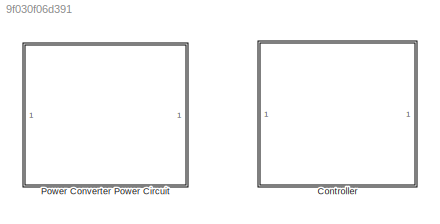
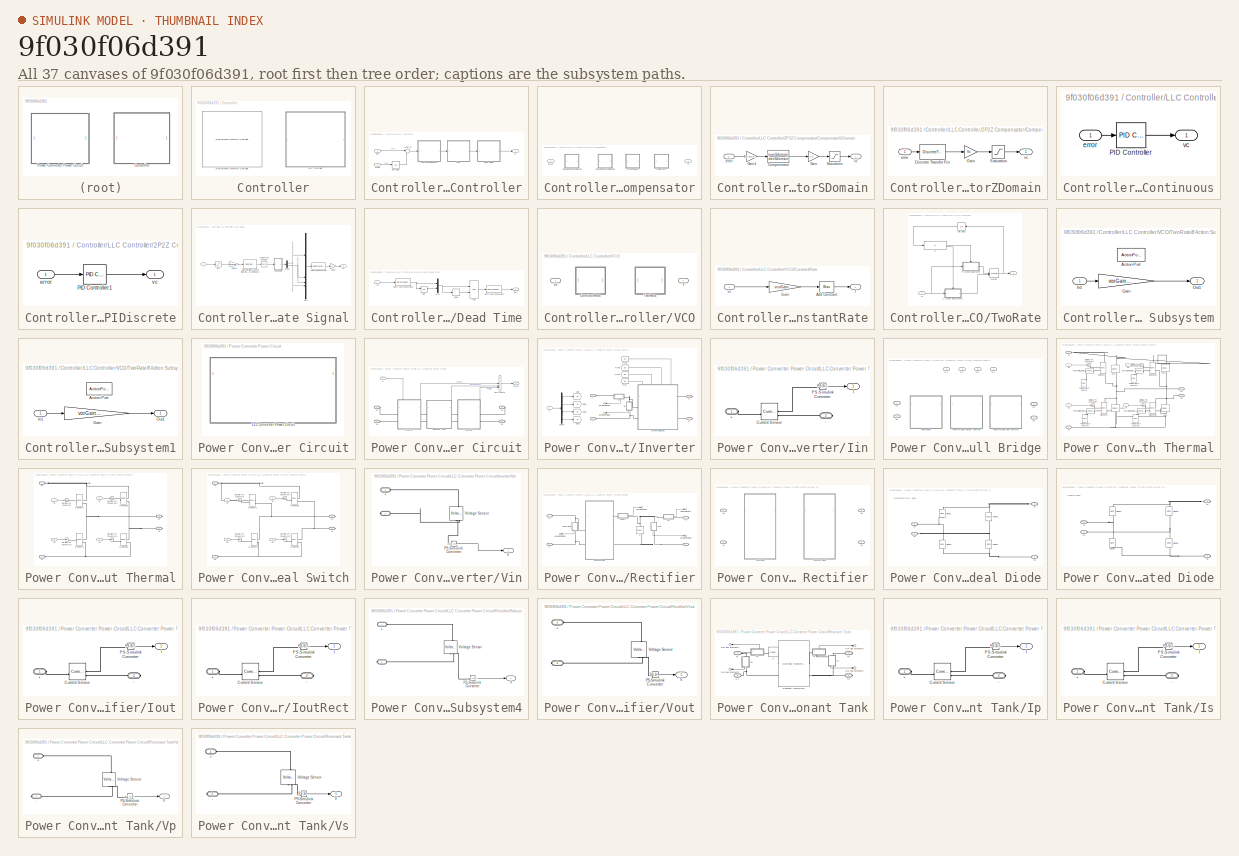
[diagram: thumbnail index - all 37 canvases of the model, root first then tree order]
MODEL slx_9f030f06d391
KIND library
CONFIG AbsTol = auto
CONFIG EnableMultiTasking = off
CONFIG FixedStep = auto
CONFIG MaxStep = auto
CONFIG MinStep = auto
CONFIG RelTol = 1e-3
CONFIG SampleTimeConstraint = Unconstrained
CONFIG SolverName = VariableStepAuto
CONFIG StartTime = 0.0
CONFIG StopTime = 10.0
BLOCK [SubSystem] Controller
BLOCK [Reference] Controller/Grid-Forming Converter Controller  REF=GFMLibrary/Grid-Forming Converter Controller
  SourceBlock = GFMLibrary/Grid-Forming Converter Controller
  SourceType = Grid-Forming Controller
BLOCK [SubSystem] Controller/LLC Controller
  CopyFcn = set_param(gcbh,"LinkStatus","none");
  PortSchema = {"entries":[{"content":{"sides":[{"content":{"connectorIds":["In1"]},"type":"ConnectorPlacement.EquallySpacedRectSide","uuid":"84c754b2-b57a-4f64-aca2-bece432afc0f"},{"content":{"connectorIds":["Out1"],"side":"RIGHT"},"type":"ConnectorPlacement.EquallySpacedRectSide","uuid":"31c81acd-cffa-43b1-9c63-1fa24393f775"},{"content":{"connectorIds":["In2"],"side":"TOP"},"type":"ConnectorPlacement.EquallySp...<+245ch>
BLOCK [SubSystem] Controller/LLC Controller/2P2Z Compensator
  LabelModeActiveChoice = SCompensator
  Variant = on
  VariantControlMode = label
BLOCK [SubSystem] Controller/LLC Controller/2P2Z Compensator/CompensatorSDomain
  VariantControl = SCompensator
BLOCK [TransferFcn] Controller/LLC Controller/2P2Z Compensator/CompensatorSDomain/Compensator
  Denominator = denSdomain
  Numerator = numSdomain
BLOCK [Gain] Controller/LLC Controller/2P2Z Compensator/CompensatorSDomain/Gain
  Gain = Kc
BLOCK [Gain] Controller/LLC Controller/2P2Z Compensator/CompensatorSDomain/Gain1
  Gain = 1/VdcValue
BLOCK [Saturate] Controller/LLC Controller/2P2Z Compensator/CompensatorSDomain/Saturation
  LowerLimit = Fmin-1
  UpperLimit = Fmax-1
BLOCK [Inport] Controller/LLC Controller/2P2Z Compensator/CompensatorSDomain/error
BLOCK [Outport] Controller/LLC Controller/2P2Z Compensator/CompensatorSDomain/vc
BLOCK [SubSystem] Controller/LLC Controller/2P2Z Compensator/CompensatorZDomain
  VariantControl = ZCompensator
BLOCK [DiscreteTransferFcn] Controller/LLC Controller/2P2Z Compensator/CompensatorZDomain/Discrete Transfer Fcn
  CloseFcn = dspblkCoreblockFVToolHelper(gcbh,'close');
  CopyFcn = dspblkCoreblockFVToolHelper(gcbh,'copy');
  DeleteFcn = dspblkCoreblockFVToolHelper(gcbh,'close');
  Denominator = denZdomain
  InputPortMap = u0
  LoadFcn = dspblkCoreblockFVToolHelper(gcbh,'load');
  ModelCloseFcn = dspblkCoreblockFVToolHelper(gcbh,'close');
  Numerator = numZdomain
  PostSaveFcn = dspblkCoreblockFVToolHelper(gcbh,'postsave');
  PreSaveFcn = dspblkCoreblockFVToolHelper(gcbh,'presave');
BLOCK [Gain] Controller/LLC Controller/2P2Z Compensator/CompensatorZDomain/Gain
  Gain = Kc
BLOCK [Saturate] Controller/LLC Controller/2P2Z Compensator/CompensatorZDomain/Saturation
  LowerLimit = Fmin-1
  UpperLimit = Fmax-1
BLOCK [Inport] Controller/LLC Controller/2P2Z Compensator/CompensatorZDomain/error
BLOCK [Outport] Controller/LLC Controller/2P2Z Compensator/CompensatorZDomain/vc
BLOCK [SubSystem] Controller/LLC Controller/2P2Z Compensator/PIContinuous
  VariantControl = PIContinuous
BLOCK [Reference] Controller/LLC Controller/2P2Z Compensator/PIContinuous/PID Controller  REF=slpidlib/PID Controller
  LibrarySourceBlock = simulink/Continuous/PID Controller
  SourceBlock = slpidlib/PID Controller
  SourceType = PID 1dof
BLOCK [Inport] Controller/LLC Controller/2P2Z Compensator/PIContinuous/error
BLOCK [Outport] Controller/LLC Controller/2P2Z Compensator/PIContinuous/vc
BLOCK [SubSystem] Controller/LLC Controller/2P2Z Compensator/PIDiscrete
  VariantControl = PIDiscrete
BLOCK [Reference] Controller/LLC Controller/2P2Z Compensator/PIDiscrete/PID Controller1  REF=slpidlib/PID Controller
  LibrarySourceBlock = simulink/Continuous/PID Controller
  SourceBlock = slpidlib/PID Controller
  SourceType = PID 1dof
BLOCK [Inport] Controller/LLC Controller/2P2Z Compensator/PIDiscrete/error
BLOCK [Outport] Controller/LLC Controller/2P2Z Compensator/PIDiscrete/vc
BLOCK [Inport] Controller/LLC Controller/2P2Z Compensator/error
BLOCK [Outport] Controller/LLC Controller/2P2Z Compensator/vc
BLOCK [Outport] Controller/LLC Controller/G
BLOCK [SubSystem] Controller/LLC Controller/Gate Signal
BLOCK [Reference] Controller/LLC Controller/Gate Signal/Compare To Constant  REF=simulink/Logic and Bit
Operations/Compare
To Constant
  SourceBlock = simulink/Logic and Bit\nOperations/Compare\nTo Constant
  SourceType = Compare To Constant
BLOCK [DataTypeConversion] Controller/LLC Controller/Gate Signal/Data Type Conversion
  RndMeth = Floor
  SaturateOnIntegerOverflow = off
BLOCK [SubSystem] Controller/LLC Controller/Gate Signal/Dead Time
BLOCK [Logic] Controller/LLC Controller/Gate Signal/Dead Time/AND
  AllPortsSameDT = off
  IconShape = distinctive
  OutDataTypeStr = boolean
BLOCK [DataTypeConversion] Controller/LLC Controller/Gate Signal/Dead Time/Data Type Conversion
  RndMeth = Floor
  SaturateOnIntegerOverflow = off
BLOCK [DataTypeConversion] Controller/LLC Controller/Gate Signal/Dead Time/Data Type Conversion1
  RndMeth = Floor
  SaturateOnIntegerOverflow = off
BLOCK [Delay] Controller/LLC Controller/Gate Signal/Dead Time/Delay
  DelayLength = 1
  InputPortMap = u0
  SampleTime = Tdead
BLOCK [Inport] Controller/LLC Controller/Gate Signal/Dead Time/In1
BLOCK [Mux] Controller/LLC Controller/Gate Signal/Dead Time/Mux
  DisplayOption = bar
  Inputs = 2
BLOCK [Logic] Controller/LLC Controller/Gate Signal/Dead Time/NOT
  AllPortsSameDT = off
  IconShape = distinctive
  Operator = NOT
  OutDataTypeStr = boolean
BLOCK [Outport] Controller/LLC Controller/Gate Signal/Dead Time/Out1
BLOCK [Demux] Controller/LLC Controller/Gate Signal/Demux
  Outputs = 2
BLOCK [Outport] Controller/LLC Controller/Gate Signal/G
BLOCK [Gain] Controller/LLC Controller/Gate Signal/Gain1
  Gain = 10
BLOCK [Reference] Controller/LLC Controller/Gate Signal/Integrator with Wrapped State (Discrete or Continuous)  REF=eeGeneralControl/Integrator with
Wrapped State
(Discrete or Continuous)
  SourceBlock = eeGeneralControl/Integrator with\nWrapped State\n(Discrete or Continuous)
  SourceType = Integrator with Wrapped State (Discrete or Continuous)
BLOCK [Mux] Controller/LLC Controller/Gate Signal/Mux1
  DisplayOption = bar
BLOCK [Inport] Controller/LLC Controller/Gate Signal/f
BLOCK [Gain] Controller/LLC Controller/Gate Signal/fpu to Hz
  Gain = resFreq*2*pi
BLOCK [Saturate] Controller/LLC Controller/Gate Signal/fsat
  LowerLimit = Fmin
  UpperLimit = Fmax
BLOCK [Sum] Controller/LLC Controller/LLCerror
  Inputs = |-+
  NameLocation = top
BLOCK [Inport] Controller/LLC Controller/Meas
  Port = 2
BLOCK [Inport] Controller/LLC Controller/Ref
BLOCK [UnitDelay] Controller/LLC Controller/Unit Delay
  HasFrameUpgradeWarning = on
  SampleTime = -1
BLOCK [SubSystem] Controller/LLC Controller/VCO
  LabelModeActiveChoice = Constant
  Variant = on
  VariantControlMode = label
BLOCK [SubSystem] Controller/LLC Controller/VCO/ConstantRate
  VariantControl = Constant
BLOCK [Bias] Controller/LLC Controller/VCO/ConstantRate/Add Constant
  Bias = 1
  SaturateOnIntegerOverflow = off
BLOCK [Gain] Controller/LLC Controller/VCO/ConstantRate/Gain
  Gain = vcoGain
BLOCK [Outport] Controller/LLC Controller/VCO/ConstantRate/f
BLOCK [Inport] Controller/LLC Controller/VCO/ConstantRate/vc
BLOCK [SubSystem] Controller/LLC Controller/VCO/TwoRate
  VariantControl = TwoRate
BLOCK [If] Controller/LLC Controller/VCO/TwoRate/If
  IfExpression = u1 > 1
BLOCK [SubSystem] Controller/LLC Controller/VCO/TwoRate/If Action Subsystem
  TreatAsAtomicUnit = on
BLOCK [ActionPort] Controller/LLC Controller/VCO/TwoRate/If Action Subsystem/Action Port
BLOCK [Gain] Controller/LLC Controller/VCO/TwoRate/If Action Subsystem/Gain
  Gain = vcoGainVec(2)
BLOCK [Inport] Controller/LLC Controller/VCO/TwoRate/If Action Subsystem/In1
BLOCK [Outport] Controller/LLC Controller/VCO/TwoRate/If Action Subsystem/Out1
BLOCK [SubSystem] Controller/LLC Controller/VCO/TwoRate/If Action Subsystem1
  TreatAsAtomicUnit = on
BLOCK [ActionPort] Controller/LLC Controller/VCO/TwoRate/If Action Subsystem1/Action Port
BLOCK [Gain] Controller/LLC Controller/VCO/TwoRate/If Action Subsystem1/Gain
  Gain = vcoGainVec(1)
BLOCK [Inport] Controller/LLC Controller/VCO/TwoRate/If Action Subsystem1/In1
BLOCK [Outport] Controller/LLC Controller/VCO/TwoRate/If Action Subsystem1/Out1
BLOCK [Merge] Controller/LLC Controller/VCO/TwoRate/Merge
BLOCK [UnitDelay] Controller/LLC Controller/VCO/TwoRate/Unit Delay
  HasFrameUpgradeWarning = on
  NameLocation = top
  SampleTime = -1
BLOCK [Outport] Controller/LLC Controller/VCO/TwoRate/f
BLOCK [Inport] Controller/LLC Controller/VCO/TwoRate/vc
BLOCK [Outport] Controller/LLC Controller/VCO/f
BLOCK [Inport] Controller/LLC Controller/VCO/vc
BLOCK [SubSystem] Power Converter Power Circuit
BLOCK [SubSystem] Power Converter Power Circuit/LLC Converter Power Circuit
  CopyFcn = set_param(gcbh,"LinkStatus","none");
BLOCK [BusCreator] Power Converter Power Circuit/LLC Converter Power Circuit/Bus Creator
  DisplayOption = bar
  InheritFromInputs = on
  Inputs = 3
BLOCK [Inport] Power Converter Power Circuit/LLC Converter Power Circuit/G
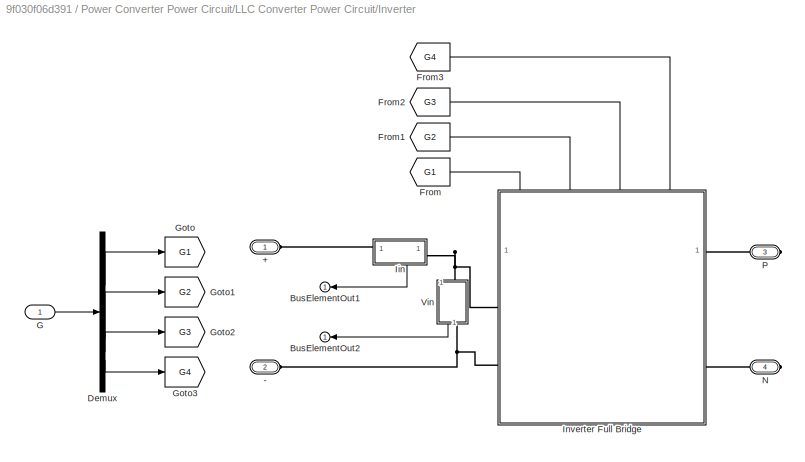
BLOCK [SubSystem] Power Converter Power Circuit/LLC Converter Power Circuit/Inverter
  PortSchema = {"entries":[{"content":{"sides":[{"content":{"connectorIds":["LConn1","LConn2"]},"type":"ConnectorPlacement.EquallySpacedRectSide","uuid":"5f98eff0-54e4-47a8-aeeb-0279cba14f26"},{"content":{"connectorIds":["RConn1","RConn2"],"side":"RIGHT"},"type":"ConnectorPlacement.EquallySpacedRectSide","uuid":"71acbbb6-1fc8-426c-b389-5d494eb18bfd"},{"content":{"connectorIds":["In1","Out1"],"side":"TOP"},"type"...<+275ch>
BLOCK [PMIOPort] Power Converter Power Circuit/LLC Converter Power Circuit/Inverter/+
  NameLocation = top
  Side = Left
BLOCK [PMIOPort] Power Converter Power Circuit/LLC Converter Power Circuit/Inverter/-
  NameLocation = top
  Port = 2
  Side = Left
BLOCK [Outport] Power Converter Power Circuit/LLC Converter Power Circuit/Inverter/BusElementOut1
  NameLocation = top
BLOCK [Outport] Power Converter Power Circuit/LLC Converter Power Circuit/Inverter/BusElementOut2
  NameLocation = top
BLOCK [Demux] Power Converter Power Circuit/LLC Converter Power Circuit/Inverter/Demux
BLOCK [From] Power Converter Power Circuit/LLC Converter Power Circuit/Inverter/From
  GotoTag = G1
BLOCK [From] Power Converter Power Circuit/LLC Converter Power Circuit/Inverter/From1
  GotoTag = G2
BLOCK [From] Power Converter Power Circuit/LLC Converter Power Circuit/Inverter/From2
  GotoTag = G3
BLOCK [From] Power Converter Power Circuit/LLC Converter Power Circuit/Inverter/From3
  GotoTag = G4
BLOCK [Inport] Power Converter Power Circuit/LLC Converter Power Circuit/Inverter/G
BLOCK [Goto] Power Converter Power Circuit/LLC Converter Power Circuit/Inverter/Goto
  GotoTag = G1
BLOCK [Goto] Power Converter Power Circuit/LLC Converter Power Circuit/Inverter/Goto1
  GotoTag = G2
BLOCK [Goto] Power Converter Power Circuit/LLC Converter Power Circuit/Inverter/Goto2
  GotoTag = G3
BLOCK [Goto] Power Converter Power Circuit/LLC Converter Power Circuit/Inverter/Goto3
  GotoTag = G4
BLOCK [SubSystem] Power Converter Power Circuit/LLC Converter Power Circuit/Inverter/Iin
  PortSchema = {"entries":[{"content":{"sides":[{"content":{"connectorIds":["LConn1","Out1"]},"type":"ConnectorPlacement.EquallySpacedRectSide","uuid":"e749c2ff-fd60-426f-a769-b61a7dfe80d2"},{"content":{"connectorIds":["RConn1"],"side":"RIGHT"},"type":"ConnectorPlacement.EquallySpacedRectSide","uuid":"f3bb02bd-f8d2-4326-b68c-6f969fa4ac22"},{"content":{"side":"TOP"},"type":"ConnectorPlacement.EquallySpacedRectSid...<+234ch>
BLOCK [PMIOPort] Power Converter Power Circuit/LLC Converter Power Circuit/Inverter/Iin/+
  Side = Left
BLOCK [PMIOPort] Power Converter Power Circuit/LLC Converter Power Circuit/Inverter/Iin/-
  Port = 2
  Side = Right
BLOCK [Reference] Power Converter Power Circuit/LLC Converter Power Circuit/Inverter/Iin/Current Sensor  REF=fl_lib/Electrical/Electrical Sensors/Current Sensor
  SourceBlock = fl_lib/Electrical/Electrical Sensors/Current Sensor
  SourceType = Current Sensor
BLOCK [Outport] Power Converter Power Circuit/LLC Converter Power Circuit/Inverter/Iin/I
BLOCK [Reference] Power Converter Power Circuit/LLC Converter Power Circuit/Inverter/Iin/PS-Simulink Converter  REF=nesl_utility/PS-Simulink
Converter
  SourceBlock = nesl_utility/PS-Simulink\nConverter
  SourceType = PS-Simulink\nConverter
BLOCK [SubSystem] Power Converter Power Circuit/LLC Converter Power Circuit/Inverter/Inverter Full Bridge
  LabelModeActiveChoice = IdealSwitch
  PortSchema = {"entries":[{"content":{"sides":[{"content":{"connectorIds":["LConn1","LConn2"]},"type":"ConnectorPlacement.EquallySpacedRectSide","uuid":"27c41940-d662-4779-afdd-48b642f77411"},{"content":{"connectorIds":["RConn1","RConn2"],"side":"RIGHT"},"type":"ConnectorPlacement.EquallySpacedRectSide","uuid":"b0072b01-add1-4b0f-b94e-e1b6c9886b0e"},{"content":{"connectorIds":["In1","In2","In3","In4"],"side":"T...<+412ch>  <repeated x4 — deduplicated; at blocks: Inverter Full Bridge, Ideal MOSFET with Thermal, Ideal MOSFET without Thermal, Ideal Switch>
  Variant = on
  VariantControlMode = label
BLOCK [Inport] Power Converter Power Circuit/LLC Converter Power Circuit/Inverter/Inverter Full Bridge/G1
BLOCK [Inport] Power Converter Power Circuit/LLC Converter Power Circuit/Inverter/Inverter Full Bridge/G2
  Port = 2
BLOCK [Inport] Power Converter Power Circuit/LLC Converter Power Circuit/Inverter/Inverter Full Bridge/G3
  Port = 3
BLOCK [Inport] Power Converter Power Circuit/LLC Converter Power Circuit/Inverter/Inverter Full Bridge/G4
  Port = 4
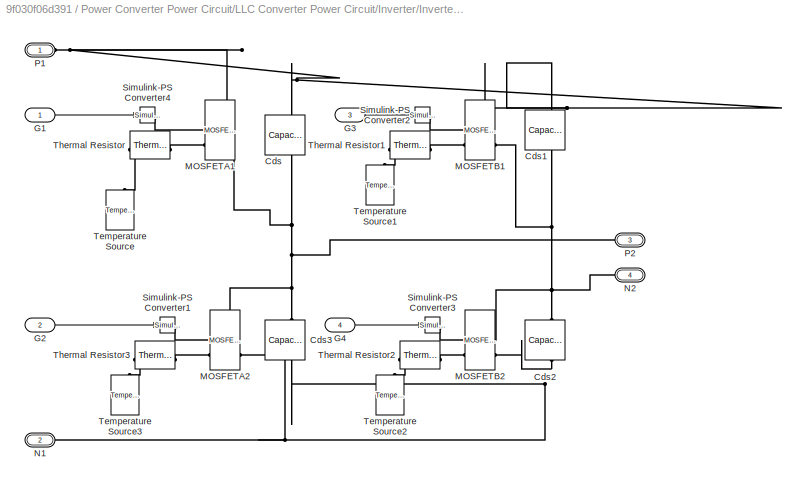
BLOCK [SubSystem] Power Converter Power Circuit/LLC Converter Power Circuit/Inverter/Inverter Full Bridge/Ideal MOSFET with Thermal
  VariantControl = IdealMOSFETwithThermal
BLOCK [Reference] Power Converter Power Circuit/LLC Converter Power Circuit/Inverter/Inverter Full Bridge/Ideal MOSFET with Thermal/Cds  REF=fl_lib/Electrical/Electrical Elements/Capacitor
  NameLocation = left
  SourceBlock = fl_lib/Electrical/Electrical Elements/Capacitor
  SourceType = Capacitor
BLOCK [Reference] Power Converter Power Circuit/LLC Converter Power Circuit/Inverter/Inverter Full Bridge/Ideal MOSFET with Thermal/Cds1  REF=fl_lib/Electrical/Electrical Elements/Capacitor
  NameLocation = left
  SourceBlock = fl_lib/Electrical/Electrical Elements/Capacitor
  SourceType = Capacitor
BLOCK [Reference] Power Converter Power Circuit/LLC Converter Power Circuit/Inverter/Inverter Full Bridge/Ideal MOSFET with Thermal/Cds2  REF=fl_lib/Electrical/Electrical Elements/Capacitor
  NameLocation = left
  SourceBlock = fl_lib/Electrical/Electrical Elements/Capacitor
  SourceType = Capacitor
BLOCK [Reference] Power Converter Power Circuit/LLC Converter Power Circuit/Inverter/Inverter Full Bridge/Ideal MOSFET with Thermal/Cds3  REF=fl_lib/Electrical/Electrical Elements/Capacitor
  NameLocation = left
  SourceBlock = fl_lib/Electrical/Electrical Elements/Capacitor
  SourceType = Capacitor
BLOCK [Inport] Power Converter Power Circuit/LLC Converter Power Circuit/Inverter/Inverter Full Bridge/Ideal MOSFET with Thermal/G1
BLOCK [Inport] Power Converter Power Circuit/LLC Converter Power Circuit/Inverter/Inverter Full Bridge/Ideal MOSFET with Thermal/G2
  Port = 2
BLOCK [Inport] Power Converter Power Circuit/LLC Converter Power Circuit/Inverter/Inverter Full Bridge/Ideal MOSFET with Thermal/G3
  Port = 3
BLOCK [Inport] Power Converter Power Circuit/LLC Converter Power Circuit/Inverter/Inverter Full Bridge/Ideal MOSFET with Thermal/G4
  Port = 4
BLOCK [Reference] Power Converter Power Circuit/LLC Converter Power Circuit/Inverter/Inverter Full Bridge/Ideal MOSFET with Thermal/MOSFETA1  REF=ee_lib/Semiconductors &
Converters/MOSFET
(Ideal,
Switching)
  AttributesFormatString = STMicroelectronics:SCTH35N65G2V-7
  SourceBlock = ee_lib/Semiconductors &\nConverters/MOSFET\n(Ideal,\nSwitching)
  SourceType = MOSFET\n(Ideal,\nSwitching)
BLOCK [Reference] Power Converter Power Circuit/LLC Converter Power Circuit/Inverter/Inverter Full Bridge/Ideal MOSFET with Thermal/MOSFETA2  REF=ee_lib/Semiconductors &
Converters/MOSFET
(Ideal,
Switching)
  AttributesFormatString = STMicroelectronics:SCTH35N65G2V-7
  SourceBlock = ee_lib/Semiconductors &\nConverters/MOSFET\n(Ideal,\nSwitching)
  SourceType = MOSFET\n(Ideal,\nSwitching)
BLOCK [Reference] Power Converter Power Circuit/LLC Converter Power Circuit/Inverter/Inverter Full Bridge/Ideal MOSFET with Thermal/MOSFETB1  REF=ee_lib/Semiconductors &
Converters/MOSFET
(Ideal,
Switching)
  AttributesFormatString = STMicroelectronics:SCTH35N65G2V-7
  SourceBlock = ee_lib/Semiconductors &\nConverters/MOSFET\n(Ideal,\nSwitching)
  SourceType = MOSFET\n(Ideal,\nSwitching)
BLOCK [Reference] Power Converter Power Circuit/LLC Converter Power Circuit/Inverter/Inverter Full Bridge/Ideal MOSFET with Thermal/MOSFETB2  REF=ee_lib/Semiconductors &
Converters/MOSFET
(Ideal,
Switching)
  AttributesFormatString = STMicroelectronics:SCTH35N65G2V-7
  SourceBlock = ee_lib/Semiconductors &\nConverters/MOSFET\n(Ideal,\nSwitching)
  SourceType = MOSFET\n(Ideal,\nSwitching)
BLOCK [PMIOPort] Power Converter Power Circuit/LLC Converter Power Circuit/Inverter/Inverter Full Bridge/Ideal MOSFET with Thermal/N1
  Port = 2
  Side = Left
BLOCK [PMIOPort] Power Converter Power Circuit/LLC Converter Power Circuit/Inverter/Inverter Full Bridge/Ideal MOSFET with Thermal/N2
  Port = 4
  Side = Right
BLOCK [PMIOPort] Power Converter Power Circuit/LLC Converter Power Circuit/Inverter/Inverter Full Bridge/Ideal MOSFET with Thermal/P1
  Side = Left
BLOCK [PMIOPort] Power Converter Power Circuit/LLC Converter Power Circuit/Inverter/Inverter Full Bridge/Ideal MOSFET with Thermal/P2
  Port = 3
  Side = Right
BLOCK [Reference] Power Converter Power Circuit/LLC Converter Power Circuit/Inverter/Inverter Full Bridge/Ideal MOSFET with Thermal/Simulink-PS Converter1  REF=nesl_utility/Simulink-PS
Converter
  SourceBlock = nesl_utility/Simulink-PS\nConverter
  SourceType = Simulink-PS\nConverter
BLOCK [Reference] Power Converter Power Circuit/LLC Converter Power Circuit/Inverter/Inverter Full Bridge/Ideal MOSFET with Thermal/Simulink-PS Converter2  REF=nesl_utility/Simulink-PS
Converter
  SourceBlock = nesl_utility/Simulink-PS\nConverter
  SourceType = Simulink-PS\nConverter
BLOCK [Reference] Power Converter Power Circuit/LLC Converter Power Circuit/Inverter/Inverter Full Bridge/Ideal MOSFET with Thermal/Simulink-PS Converter3  REF=nesl_utility/Simulink-PS
Converter
  SourceBlock = nesl_utility/Simulink-PS\nConverter
  SourceType = Simulink-PS\nConverter
BLOCK [Reference] Power Converter Power Circuit/LLC Converter Power Circuit/Inverter/Inverter Full Bridge/Ideal MOSFET with Thermal/Simulink-PS Converter4  REF=nesl_utility/Simulink-PS
Converter
  SourceBlock = nesl_utility/Simulink-PS\nConverter
  SourceType = Simulink-PS\nConverter
BLOCK [Reference] Power Converter Power Circuit/LLC Converter Power Circuit/Inverter/Inverter Full Bridge/Ideal MOSFET with Thermal/Temperature Source  REF=fl_lib/Thermal/Thermal Sources/Temperature Source
  NameLocation = right
  SourceBlock = fl_lib/Thermal/Thermal Sources/Temperature Source
  SourceType = Temperature Source
BLOCK [Reference] Power Converter Power Circuit/LLC Converter Power Circuit/Inverter/Inverter Full Bridge/Ideal MOSFET with Thermal/Temperature Source1  REF=fl_lib/Thermal/Thermal Sources/Temperature Source
  NameLocation = right
  SourceBlock = fl_lib/Thermal/Thermal Sources/Temperature Source
  SourceType = Temperature Source
BLOCK [Reference] Power Converter Power Circuit/LLC Converter Power Circuit/Inverter/Inverter Full Bridge/Ideal MOSFET with Thermal/Temperature Source2  REF=fl_lib/Thermal/Thermal Sources/Temperature Source
  NameLocation = right
  SourceBlock = fl_lib/Thermal/Thermal Sources/Temperature Source
  SourceType = Temperature Source
BLOCK [Reference] Power Converter Power Circuit/LLC Converter Power Circuit/Inverter/Inverter Full Bridge/Ideal MOSFET with Thermal/Temperature Source3  REF=fl_lib/Thermal/Thermal Sources/Temperature Source
  NameLocation = right
  SourceBlock = fl_lib/Thermal/Thermal Sources/Temperature Source
  SourceType = Temperature Source
BLOCK [Reference] Power Converter Power Circuit/LLC Converter Power Circuit/Inverter/Inverter Full Bridge/Ideal MOSFET with Thermal/Thermal Resistor  REF=ee_lib/Passive/Thermal/Thermal Resistor
  SourceBlock = ee_lib/Passive/Thermal/Thermal Resistor
  SourceType = Thermal Resistor
BLOCK [Reference] Power Converter Power Circuit/LLC Converter Power Circuit/Inverter/Inverter Full Bridge/Ideal MOSFET with Thermal/Thermal Resistor1  REF=ee_lib/Passive/Thermal/Thermal Resistor
  SourceBlock = ee_lib/Passive/Thermal/Thermal Resistor
  SourceType = Thermal Resistor
BLOCK [Reference] Power Converter Power Circuit/LLC Converter Power Circuit/Inverter/Inverter Full Bridge/Ideal MOSFET with Thermal/Thermal Resistor2  REF=ee_lib/Passive/Thermal/Thermal Resistor
  SourceBlock = ee_lib/Passive/Thermal/Thermal Resistor
  SourceType = Thermal Resistor
BLOCK [Reference] Power Converter Power Circuit/LLC Converter Power Circuit/Inverter/Inverter Full Bridge/Ideal MOSFET with Thermal/Thermal Resistor3  REF=ee_lib/Passive/Thermal/Thermal Resistor
  SourceBlock = ee_lib/Passive/Thermal/Thermal Resistor
  SourceType = Thermal Resistor
BLOCK [SubSystem] Power Converter Power Circuit/LLC Converter Power Circuit/Inverter/Inverter Full Bridge/Ideal MOSFET without Thermal
  VariantControl = IdealMOSFETwithoutThermal
BLOCK [Inport] Power Converter Power Circuit/LLC Converter Power Circuit/Inverter/Inverter Full Bridge/Ideal MOSFET without Thermal/G1
BLOCK [Inport] Power Converter Power Circuit/LLC Converter Power Circuit/Inverter/Inverter Full Bridge/Ideal MOSFET without Thermal/G2
  Port = 2
BLOCK [Inport] Power Converter Power Circuit/LLC Converter Power Circuit/Inverter/Inverter Full Bridge/Ideal MOSFET without Thermal/G3
  Port = 3
BLOCK [Inport] Power Converter Power Circuit/LLC Converter Power Circuit/Inverter/Inverter Full Bridge/Ideal MOSFET without Thermal/G4
  Port = 4
BLOCK [Reference] Power Converter Power Circuit/LLC Converter Power Circuit/Inverter/Inverter Full Bridge/Ideal MOSFET without Thermal/MOSFETA1  REF=ee_lib/Semiconductors &
Converters/MOSFET
(Ideal,
Switching)
  SourceBlock = ee_lib/Semiconductors &\nConverters/MOSFET\n(Ideal,\nSwitching)
  SourceType = MOSFET\n(Ideal,\nSwitching)
BLOCK [Reference] Power Converter Power Circuit/LLC Converter Power Circuit/Inverter/Inverter Full Bridge/Ideal MOSFET without Thermal/MOSFETA2  REF=ee_lib/Semiconductors &
Converters/MOSFET
(Ideal,
Switching)
  SourceBlock = ee_lib/Semiconductors &\nConverters/MOSFET\n(Ideal,\nSwitching)
  SourceType = MOSFET\n(Ideal,\nSwitching)
BLOCK [Reference] Power Converter Power Circuit/LLC Converter Power Circuit/Inverter/Inverter Full Bridge/Ideal MOSFET without Thermal/MOSFETB1  REF=ee_lib/Semiconductors &
Converters/MOSFET
(Ideal,
Switching)
  SourceBlock = ee_lib/Semiconductors &\nConverters/MOSFET\n(Ideal,\nSwitching)
  SourceType = MOSFET\n(Ideal,\nSwitching)
BLOCK [Reference] Power Converter Power Circuit/LLC Converter Power Circuit/Inverter/Inverter Full Bridge/Ideal MOSFET without Thermal/MOSFETB2  REF=ee_lib/Semiconductors &
Converters/MOSFET
(Ideal,
Switching)
  SourceBlock = ee_lib/Semiconductors &\nConverters/MOSFET\n(Ideal,\nSwitching)
  SourceType = MOSFET\n(Ideal,\nSwitching)
BLOCK [PMIOPort] Power Converter Power Circuit/LLC Converter Power Circuit/Inverter/Inverter Full Bridge/Ideal MOSFET without Thermal/N1
  Port = 2
  Side = Left
BLOCK [PMIOPort] Power Converter Power Circuit/LLC Converter Power Circuit/Inverter/Inverter Full Bridge/Ideal MOSFET without Thermal/N2
  Port = 4
  Side = Right
BLOCK [PMIOPort] Power Converter Power Circuit/LLC Converter Power Circuit/Inverter/Inverter Full Bridge/Ideal MOSFET without Thermal/P1
  Side = Left
BLOCK [PMIOPort] Power Converter Power Circuit/LLC Converter Power Circuit/Inverter/Inverter Full Bridge/Ideal MOSFET without Thermal/P2
  Port = 3
  Side = Right
BLOCK [Reference] Power Converter Power Circuit/LLC Converter Power Circuit/Inverter/Inverter Full Bridge/Ideal MOSFET without Thermal/Simulink-PS Converter  REF=nesl_utility/Simulink-PS
Converter
  SourceBlock = nesl_utility/Simulink-PS\nConverter
  SourceType = Simulink-PS\nConverter
BLOCK [Reference] Power Converter Power Circuit/LLC Converter Power Circuit/Inverter/Inverter Full Bridge/Ideal MOSFET without Thermal/Simulink-PS Converter1  REF=nesl_utility/Simulink-PS
Converter
  SourceBlock = nesl_utility/Simulink-PS\nConverter
  SourceType = Simulink-PS\nConverter
BLOCK [Reference] Power Converter Power Circuit/LLC Converter Power Circuit/Inverter/Inverter Full Bridge/Ideal MOSFET without Thermal/Simulink-PS Converter2  REF=nesl_utility/Simulink-PS
Converter
  SourceBlock = nesl_utility/Simulink-PS\nConverter
  SourceType = Simulink-PS\nConverter
BLOCK [Reference] Power Converter Power Circuit/LLC Converter Power Circuit/Inverter/Inverter Full Bridge/Ideal MOSFET without Thermal/Simulink-PS Converter3  REF=nesl_utility/Simulink-PS
Converter
  SourceBlock = nesl_utility/Simulink-PS\nConverter
  SourceType = Simulink-PS\nConverter
BLOCK [SubSystem] Power Converter Power Circuit/LLC Converter Power Circuit/Inverter/Inverter Full Bridge/Ideal Switch
  VariantControl = IdealSwitch
BLOCK [Inport] Power Converter Power Circuit/LLC Converter Power Circuit/Inverter/Inverter Full Bridge/Ideal Switch/G1
BLOCK [Inport] Power Converter Power Circuit/LLC Converter Power Circuit/Inverter/Inverter Full Bridge/Ideal Switch/G2
  Port = 2
BLOCK [Inport] Power Converter Power Circuit/LLC Converter Power Circuit/Inverter/Inverter Full Bridge/Ideal Switch/G3
  Port = 3
BLOCK [Inport] Power Converter Power Circuit/LLC Converter Power Circuit/Inverter/Inverter Full Bridge/Ideal Switch/G4
  Port = 4
BLOCK [Reference] Power Converter Power Circuit/LLC Converter Power Circuit/Inverter/Inverter Full Bridge/Ideal Switch/MOSFETA1  REF=ee_lib/Semiconductors &
Converters/Ideal Semiconductor
Switch
  SourceBlock = ee_lib/Semiconductors &\nConverters/Ideal Semiconductor\nSwitch
  SourceType = Ideal Semiconductor\nSwitch
BLOCK [Reference] Power Converter Power Circuit/LLC Converter Power Circuit/Inverter/Inverter Full Bridge/Ideal Switch/MOSFETA2  REF=ee_lib/Semiconductors &
Converters/Ideal Semiconductor
Switch
  SourceBlock = ee_lib/Semiconductors &\nConverters/Ideal Semiconductor\nSwitch
  SourceType = Ideal Semiconductor\nSwitch
BLOCK [Reference] Power Converter Power Circuit/LLC Converter Power Circuit/Inverter/Inverter Full Bridge/Ideal Switch/MOSFETB1  REF=ee_lib/Semiconductors &
Converters/Ideal Semiconductor
Switch
  SourceBlock = ee_lib/Semiconductors &\nConverters/Ideal Semiconductor\nSwitch
  SourceType = Ideal Semiconductor\nSwitch
BLOCK [Reference] Power Converter Power Circuit/LLC Converter Power Circuit/Inverter/Inverter Full Bridge/Ideal Switch/MOSFETB2  REF=ee_lib/Semiconductors &
Converters/Ideal Semiconductor
Switch
  SourceBlock = ee_lib/Semiconductors &\nConverters/Ideal Semiconductor\nSwitch
  SourceType = Ideal Semiconductor\nSwitch
BLOCK [PMIOPort] Power Converter Power Circuit/LLC Converter Power Circuit/Inverter/Inverter Full Bridge/Ideal Switch/N1
  Port = 2
  Side = Left
BLOCK [PMIOPort] Power Converter Power Circuit/LLC Converter Power Circuit/Inverter/Inverter Full Bridge/Ideal Switch/N2
  Port = 4
  Side = Right
BLOCK [PMIOPort] Power Converter Power Circuit/LLC Converter Power Circuit/Inverter/Inverter Full Bridge/Ideal Switch/P1
  Side = Left
BLOCK [PMIOPort] Power Converter Power Circuit/LLC Converter Power Circuit/Inverter/Inverter Full Bridge/Ideal Switch/P2
  Port = 3
  Side = Right
BLOCK [Reference] Power Converter Power Circuit/LLC Converter Power Circuit/Inverter/Inverter Full Bridge/Ideal Switch/Simulink-PS Converter  REF=nesl_utility/Simulink-PS
Converter
  SourceBlock = nesl_utility/Simulink-PS\nConverter
  SourceType = Simulink-PS\nConverter
BLOCK [Reference] Power Converter Power Circuit/LLC Converter Power Circuit/Inverter/Inverter Full Bridge/Ideal Switch/Simulink-PS Converter1  REF=nesl_utility/Simulink-PS
Converter
  SourceBlock = nesl_utility/Simulink-PS\nConverter
  SourceType = Simulink-PS\nConverter
BLOCK [Reference] Power Converter Power Circuit/LLC Converter Power Circuit/Inverter/Inverter Full Bridge/Ideal Switch/Simulink-PS Converter2  REF=nesl_utility/Simulink-PS
Converter
  SourceBlock = nesl_utility/Simulink-PS\nConverter
  SourceType = Simulink-PS\nConverter
BLOCK [Reference] Power Converter Power Circuit/LLC Converter Power Circuit/Inverter/Inverter Full Bridge/Ideal Switch/Simulink-PS Converter3  REF=nesl_utility/Simulink-PS
Converter
  SourceBlock = nesl_utility/Simulink-PS\nConverter
  SourceType = Simulink-PS\nConverter
BLOCK [PMIOPort] Power Converter Power Circuit/LLC Converter Power Circuit/Inverter/Inverter Full Bridge/N1
  Port = 2
  Side = Left
BLOCK [PMIOPort] Power Converter Power Circuit/LLC Converter Power Circuit/Inverter/Inverter Full Bridge/N2
  Port = 4
  Side = Right
BLOCK [PMIOPort] Power Converter Power Circuit/LLC Converter Power Circuit/Inverter/Inverter Full Bridge/P1
  Side = Left
BLOCK [PMIOPort] Power Converter Power Circuit/LLC Converter Power Circuit/Inverter/Inverter Full Bridge/P2
  Port = 3
  Side = Right
BLOCK [PMIOPort] Power Converter Power Circuit/LLC Converter Power Circuit/Inverter/N
  Port = 4
  Side = Right
BLOCK [PMIOPort] Power Converter Power Circuit/LLC Converter Power Circuit/Inverter/P
  Port = 3
  Side = Right
BLOCK [SubSystem] Power Converter Power Circuit/LLC Converter Power Circuit/Inverter/Vin
  NameLocation = left
BLOCK [PMIOPort] Power Converter Power Circuit/LLC Converter Power Circuit/Inverter/Vin/+
  Side = Left
BLOCK [PMIOPort] Power Converter Power Circuit/LLC Converter Power Circuit/Inverter/Vin/-
  Port = 2
  Side = Right
BLOCK [Reference] Power Converter Power Circuit/LLC Converter Power Circuit/Inverter/Vin/PS-Simulink Converter  REF=nesl_utility/PS-Simulink
Converter
  SourceBlock = nesl_utility/PS-Simulink\nConverter
  SourceType = PS-Simulink\nConverter
BLOCK [Outport] Power Converter Power Circuit/LLC Converter Power Circuit/Inverter/Vin/V
BLOCK [Reference] Power Converter Power Circuit/LLC Converter Power Circuit/Inverter/Vin/Voltage Sensor  REF=fl_lib/Electrical/Electrical Sensors/Voltage Sensor
  NameLocation = right
  SourceBlock = fl_lib/Electrical/Electrical Sensors/Voltage Sensor
  SourceType = Voltage Sensor
BLOCK [Outport] Power Converter Power Circuit/LLC Converter Power Circuit/Meas
BLOCK [PMIOPort] Power Converter Power Circuit/LLC Converter Power Circuit/N1
  Port = 3
  Side = Left
BLOCK [PMIOPort] Power Converter Power Circuit/LLC Converter Power Circuit/N2
  Port = 4
  Side = Right
BLOCK [PMIOPort] Power Converter Power Circuit/LLC Converter Power Circuit/P1
  Side = Left
BLOCK [PMIOPort] Power Converter Power Circuit/LLC Converter Power Circuit/P2
  Port = 2
  Side = Right
BLOCK [SubSystem] Power Converter Power Circuit/LLC Converter Power Circuit/Rectifier
  PortSchema = {"entries":[{"content":{"sides":[{"content":{"connectorIds":["LConn1","LConn2"]},"type":"ConnectorPlacement.EquallySpacedRectSide","uuid":"4786b3cc-2245-4c72-a50b-9c63e4ad3d8a"},{"content":{"connectorIds":["RConn1","RConn2"],"side":"RIGHT"},"type":"ConnectorPlacement.EquallySpacedRectSide","uuid":"250a01d0-bf95-4e01-bf69-d866bcf3b7bd"},{"content":{"connectorIds":["Out1"],"side":"TOP"},"type":"Conn...<+269ch>
BLOCK [PMIOPort] Power Converter Power Circuit/LLC Converter Power Circuit/Rectifier/+
  Port = 3
  Side = Right
BLOCK [PMIOPort] Power Converter Power Circuit/LLC Converter Power Circuit/Rectifier/-
  Port = 4
  Side = Right
BLOCK [Outport] Power Converter Power Circuit/LLC Converter Power Circuit/Rectifier/BusElementOut
BLOCK [Outport] Power Converter Power Circuit/LLC Converter Power Circuit/Rectifier/BusElementOut1
BLOCK [Outport] Power Converter Power Circuit/LLC Converter Power Circuit/Rectifier/BusElementOut2
  NameLocation = top
BLOCK [Reference] Power Converter Power Circuit/LLC Converter Power Circuit/Rectifier/C  REF=fl_lib/Electrical/Electrical Elements/Capacitor
  NameLocation = left
  SourceBlock = fl_lib/Electrical/Electrical Elements/Capacitor
  SourceType = Capacitor
BLOCK [SubSystem] Power Converter Power Circuit/LLC Converter Power Circuit/Rectifier/Full Bridge Rectifier
  LabelModeActiveChoice = IdealDiode
  Variant = on
  VariantControlMode = label
BLOCK [SubSystem] Power Converter Power Circuit/LLC Converter Power Circuit/Rectifier/Full Bridge Rectifier/Ideal Diode
  VariantControl = IdealDiode
BLOCK [Reference] Power Converter Power Circuit/LLC Converter Power Circuit/Rectifier/Full Bridge Rectifier/Ideal Diode/Diode1  REF=fl_lib/Electrical/Electrical Elements/Diode
  NameLocation = left
  SourceBlock = fl_lib/Electrical/Electrical Elements/Diode
  SourceType = Diode
BLOCK [Reference] Power Converter Power Circuit/LLC Converter Power Circuit/Rectifier/Full Bridge Rectifier/Ideal Diode/Diode2  REF=fl_lib/Electrical/Electrical Elements/Diode
  NameLocation = left
  SourceBlock = fl_lib/Electrical/Electrical Elements/Diode
  SourceType = Diode
BLOCK [Reference] Power Converter Power Circuit/LLC Converter Power Circuit/Rectifier/Full Bridge Rectifier/Ideal Diode/Diode3  REF=fl_lib/Electrical/Electrical Elements/Diode
  NameLocation = left
  SourceBlock = fl_lib/Electrical/Electrical Elements/Diode
  SourceType = Diode
BLOCK [Reference] Power Converter Power Circuit/LLC Converter Power Circuit/Rectifier/Full Bridge Rectifier/Ideal Diode/Diode4  REF=fl_lib/Electrical/Electrical Elements/Diode
  NameLocation = left
  SourceBlock = fl_lib/Electrical/Electrical Elements/Diode
  SourceType = Diode
BLOCK [PMIOPort] Power Converter Power Circuit/LLC Converter Power Circuit/Rectifier/Full Bridge Rectifier/Ideal Diode/N1
  Port = 2
  Side = Left
BLOCK [PMIOPort] Power Converter Power Circuit/LLC Converter Power Circuit/Rectifier/Full Bridge Rectifier/Ideal Diode/N2
  Port = 4
  Side = Right
BLOCK [PMIOPort] Power Converter Power Circuit/LLC Converter Power Circuit/Rectifier/Full Bridge Rectifier/Ideal Diode/P1
  Side = Left
BLOCK [PMIOPort] Power Converter Power Circuit/LLC Converter Power Circuit/Rectifier/Full Bridge Rectifier/Ideal Diode/P2
  Port = 3
  Side = Right
BLOCK [PMIOPort] Power Converter Power Circuit/LLC Converter Power Circuit/Rectifier/Full Bridge Rectifier/N1
  Port = 2
  Side = Left
BLOCK [PMIOPort] Power Converter Power Circuit/LLC Converter Power Circuit/Rectifier/Full Bridge Rectifier/N2
  Port = 4
  Side = Right
BLOCK [PMIOPort] Power Converter Power Circuit/LLC Converter Power Circuit/Rectifier/Full Bridge Rectifier/P1
  Side = Left
BLOCK [PMIOPort] Power Converter Power Circuit/LLC Converter Power Circuit/Rectifier/Full Bridge Rectifier/P2
  Port = 3
  Side = Right
BLOCK [SubSystem] Power Converter Power Circuit/LLC Converter Power Circuit/Rectifier/Full Bridge Rectifier/Tabulated Diode
  VariantControl = TabulatedDiode
BLOCK [Reference] Power Converter Power Circuit/LLC Converter Power Circuit/Rectifier/Full Bridge Rectifier/Tabulated Diode/Diode1  REF=ee_lib/Semiconductors &
Converters/Diode
  AttributesFormatString = STMicroelectronics:STPSC20G12
  NameLocation = left
  SourceBlock = ee_lib/Semiconductors &\nConverters/Diode
  SourceType = Diode
BLOCK [Reference] Power Converter Power Circuit/LLC Converter Power Circuit/Rectifier/Full Bridge Rectifier/Tabulated Diode/Diode2  REF=ee_lib/Semiconductors &
Converters/Diode
  AttributesFormatString = STMicroelectronics:STPSC20G12
  NameLocation = left
  SourceBlock = ee_lib/Semiconductors &\nConverters/Diode
  SourceType = Diode
BLOCK [Reference] Power Converter Power Circuit/LLC Converter Power Circuit/Rectifier/Full Bridge Rectifier/Tabulated Diode/Diode3  REF=ee_lib/Semiconductors &
Converters/Diode
  AttributesFormatString = STMicroelectronics:STPSC20G12
  NameLocation = left
  SourceBlock = ee_lib/Semiconductors &\nConverters/Diode
  SourceType = Diode
BLOCK [Reference] Power Converter Power Circuit/LLC Converter Power Circuit/Rectifier/Full Bridge Rectifier/Tabulated Diode/Diode4  REF=ee_lib/Semiconductors &
Converters/Diode
  AttributesFormatString = STMicroelectronics:STPSC20G12
  NameLocation = left
  SourceBlock = ee_lib/Semiconductors &\nConverters/Diode
  SourceType = Diode
BLOCK [PMIOPort] Power Converter Power Circuit/LLC Converter Power Circuit/Rectifier/Full Bridge Rectifier/Tabulated Diode/N1
  Port = 2
  Side = Left
BLOCK [PMIOPort] Power Converter Power Circuit/LLC Converter Power Circuit/Rectifier/Full Bridge Rectifier/Tabulated Diode/N2
  Port = 4
  Side = Right
BLOCK [PMIOPort] Power Converter Power Circuit/LLC Converter Power Circuit/Rectifier/Full Bridge Rectifier/Tabulated Diode/P1
  Side = Left
BLOCK [PMIOPort] Power Converter Power Circuit/LLC Converter Power Circuit/Rectifier/Full Bridge Rectifier/Tabulated Diode/P2
  Port = 3
  Side = Right
BLOCK [SubSystem] Power Converter Power Circuit/LLC Converter Power Circuit/Rectifier/Iout
BLOCK [PMIOPort] Power Converter Power Circuit/LLC Converter Power Circuit/Rectifier/Iout/+
  Side = Left
BLOCK [PMIOPort] Power Converter Power Circuit/LLC Converter Power Circuit/Rectifier/Iout/-
  Port = 2
  Side = Right
BLOCK [Reference] Power Converter Power Circuit/LLC Converter Power Circuit/Rectifier/Iout/Current Sensor  REF=fl_lib/Electrical/Electrical Sensors/Current Sensor
  SourceBlock = fl_lib/Electrical/Electrical Sensors/Current Sensor
  SourceType = Current Sensor
BLOCK [Outport] Power Converter Power Circuit/LLC Converter Power Circuit/Rectifier/Iout/I
BLOCK [Reference] Power Converter Power Circuit/LLC Converter Power Circuit/Rectifier/Iout/PS-Simulink Converter  REF=nesl_utility/PS-Simulink
Converter
  SourceBlock = nesl_utility/PS-Simulink\nConverter
  SourceType = PS-Simulink\nConverter
BLOCK [SubSystem] Power Converter Power Circuit/LLC Converter Power Circuit/Rectifier/IoutRect
BLOCK [PMIOPort] Power Converter Power Circuit/LLC Converter Power Circuit/Rectifier/IoutRect/+
  Side = Left
BLOCK [PMIOPort] Power Converter Power Circuit/LLC Converter Power Circuit/Rectifier/IoutRect/-
  Port = 2
  Side = Right
BLOCK [Reference] Power Converter Power Circuit/LLC Converter Power Circuit/Rectifier/IoutRect/Current Sensor  REF=fl_lib/Electrical/Electrical Sensors/Current Sensor
  SourceBlock = fl_lib/Electrical/Electrical Sensors/Current Sensor
  SourceType = Current Sensor
BLOCK [Outport] Power Converter Power Circuit/LLC Converter Power Circuit/Rectifier/IoutRect/I
BLOCK [Reference] Power Converter Power Circuit/LLC Converter Power Circuit/Rectifier/IoutRect/PS-Simulink Converter  REF=nesl_utility/PS-Simulink
Converter
  SourceBlock = nesl_utility/PS-Simulink\nConverter
  SourceType = PS-Simulink\nConverter
BLOCK [PMIOPort] Power Converter Power Circuit/LLC Converter Power Circuit/Rectifier/N
  NameLocation = top
  Port = 2
  Side = Left
BLOCK [Outport] Power Converter Power Circuit/LLC Converter Power Circuit/Rectifier/Out Bus Element
BLOCK [PMIOPort] Power Converter Power Circuit/LLC Converter Power Circuit/Rectifier/P
  NameLocation = top
  Side = Left
BLOCK [SubSystem] Power Converter Power Circuit/LLC Converter Power Circuit/Rectifier/Subsystem4
  NameLocation = left
  PortSchema = {"entries":[{"content":{"sides":[{"content":{"connectorIds":["LConn1"]},"type":"ConnectorPlacement.EquallySpacedRectSide","uuid":"e749c2ff-fd60-426f-a769-b61a7dfe80d2"},{"content":{"connectorIds":["RConn1","Out1"],"side":"RIGHT"},"type":"ConnectorPlacement.EquallySpacedRectSide","uuid":"f3bb02bd-f8d2-4326-b68c-6f969fa4ac22"},{"content":{"side":"TOP"},"type":"ConnectorPlacement.EquallySpacedRectSid...<+234ch>  <repeated x3 — deduplicated; at blocks: Subsystem4, Vout, Is>
BLOCK [PMIOPort] Power Converter Power Circuit/LLC Converter Power Circuit/Rectifier/Subsystem4/+
  Side = Left
BLOCK [PMIOPort] Power Converter Power Circuit/LLC Converter Power Circuit/Rectifier/Subsystem4/-
  Port = 2
  Side = Right
BLOCK [Reference] Power Converter Power Circuit/LLC Converter Power Circuit/Rectifier/Subsystem4/PS-Simulink Converter  REF=nesl_utility/PS-Simulink
Converter
  SourceBlock = nesl_utility/PS-Simulink\nConverter
  SourceType = PS-Simulink\nConverter
BLOCK [Outport] Power Converter Power Circuit/LLC Converter Power Circuit/Rectifier/Subsystem4/V
BLOCK [Reference] Power Converter Power Circuit/LLC Converter Power Circuit/Rectifier/Subsystem4/Voltage Sensor  REF=fl_lib/Electrical/Electrical Sensors/Voltage Sensor
  NameLocation = right
  SourceBlock = fl_lib/Electrical/Electrical Sensors/Voltage Sensor
  SourceType = Voltage Sensor
BLOCK [SubSystem] Power Converter Power Circuit/LLC Converter Power Circuit/Rectifier/Vout
  NameLocation = left
BLOCK [PMIOPort] Power Converter Power Circuit/LLC Converter Power Circuit/Rectifier/Vout/+
  Side = Left
BLOCK [PMIOPort] Power Converter Power Circuit/LLC Converter Power Circuit/Rectifier/Vout/-
  Port = 2
  Side = Right
BLOCK [Reference] Power Converter Power Circuit/LLC Converter Power Circuit/Rectifier/Vout/PS-Simulink Converter  REF=nesl_utility/PS-Simulink
Converter
  SourceBlock = nesl_utility/PS-Simulink\nConverter
  SourceType = PS-Simulink\nConverter
BLOCK [Outport] Power Converter Power Circuit/LLC Converter Power Circuit/Rectifier/Vout/V
BLOCK [Reference] Power Converter Power Circuit/LLC Converter Power Circuit/Rectifier/Vout/Voltage Sensor  REF=fl_lib/Electrical/Electrical Sensors/Voltage Sensor
  NameLocation = right
  SourceBlock = fl_lib/Electrical/Electrical Sensors/Voltage Sensor
  SourceType = Voltage Sensor
BLOCK [SubSystem] Power Converter Power Circuit/LLC Converter Power Circuit/Resonant Tank
  PortSchema = {"entries":[{"content":{"sides":[{"content":{"connectorIds":["LConn1","LConn2"]},"type":"ConnectorPlacement.EquallySpacedRectSide","uuid":"d505f362-3b8e-4dee-9b5b-731d75550efb"},{"content":{"connectorIds":["RConn1","RConn2"],"side":"RIGHT"},"type":"ConnectorPlacement.EquallySpacedRectSide","uuid":"66ab4b84-9b7a-404b-b3f6-3ac1c371ea42"},{"content":{"connectorIds":["Out1"],"side":"TOP"},"type":"Conn...<+269ch>
BLOCK [Reference] Power Converter Power Circuit/LLC Converter Power Circuit/Resonant Tank/C  REF=fl_lib/Electrical/Electrical Elements/Capacitor
  SourceBlock = fl_lib/Electrical/Electrical Elements/Capacitor
  SourceType = Capacitor
BLOCK [SubSystem] Power Converter Power Circuit/LLC Converter Power Circuit/Resonant Tank/Ip
  PortSchema = {"entries":[{"content":{"sides":[{"content":{"connectorIds":["Out1","LConn1"]},"type":"ConnectorPlacement.EquallySpacedRectSide","uuid":"e749c2ff-fd60-426f-a769-b61a7dfe80d2"},{"content":{"connectorIds":["RConn1"],"side":"RIGHT"},"type":"ConnectorPlacement.EquallySpacedRectSide","uuid":"f3bb02bd-f8d2-4326-b68c-6f969fa4ac22"},{"content":{"side":"TOP"},"type":"ConnectorPlacement.EquallySpacedRectSid...<+234ch>
BLOCK [PMIOPort] Power Converter Power Circuit/LLC Converter Power Circuit/Resonant Tank/Ip/+
  Side = Left
BLOCK [PMIOPort] Power Converter Power Circuit/LLC Converter Power Circuit/Resonant Tank/Ip/-
  Port = 2
  Side = Right
BLOCK [Reference] Power Converter Power Circuit/LLC Converter Power Circuit/Resonant Tank/Ip/Current Sensor  REF=fl_lib/Electrical/Electrical Sensors/Current Sensor
  SourceBlock = fl_lib/Electrical/Electrical Sensors/Current Sensor
  SourceType = Current Sensor
BLOCK [Outport] Power Converter Power Circuit/LLC Converter Power Circuit/Resonant Tank/Ip/I
BLOCK [Reference] Power Converter Power Circuit/LLC Converter Power Circuit/Resonant Tank/Ip/PS-Simulink Converter  REF=nesl_utility/PS-Simulink
Converter
  SourceBlock = nesl_utility/PS-Simulink\nConverter
  SourceType = PS-Simulink\nConverter
BLOCK [SubSystem] Power Converter Power Circuit/LLC Converter Power Circuit/Resonant Tank/Is
BLOCK [PMIOPort] Power Converter Power Circuit/LLC Converter Power Circuit/Resonant Tank/Is/+
  Side = Left
BLOCK [PMIOPort] Power Converter Power Circuit/LLC Converter Power Circuit/Resonant Tank/Is/-
  Port = 2
  Side = Right
BLOCK [Reference] Power Converter Power Circuit/LLC Converter Power Circuit/Resonant Tank/Is/Current Sensor  REF=fl_lib/Electrical/Electrical Sensors/Current Sensor
  SourceBlock = fl_lib/Electrical/Electrical Sensors/Current Sensor
  SourceType = Current Sensor
BLOCK [Outport] Power Converter Power Circuit/LLC Converter Power Circuit/Resonant Tank/Is/I
BLOCK [Reference] Power Converter Power Circuit/LLC Converter Power Circuit/Resonant Tank/Is/PS-Simulink Converter  REF=nesl_utility/PS-Simulink
Converter
  SourceBlock = nesl_utility/PS-Simulink\nConverter
  SourceType = PS-Simulink\nConverter
BLOCK [PMIOPort] Power Converter Power Circuit/LLC Converter Power Circuit/Resonant Tank/N1
  Port = 2
  Side = Left
BLOCK [PMIOPort] Power Converter Power Circuit/LLC Converter Power Circuit/Resonant Tank/N2
  Port = 4
  Side = Right
BLOCK [Outport] Power Converter Power Circuit/LLC Converter Power Circuit/Resonant Tank/Out Bus Element1
  NameLocation = top
BLOCK [Outport] Power Converter Power Circuit/LLC Converter Power Circuit/Resonant Tank/Out Bus Element2
  NameLocation = top
BLOCK [Outport] Power Converter Power Circuit/LLC Converter Power Circuit/Resonant Tank/Out Bus Element3
BLOCK [Outport] Power Converter Power Circuit/LLC Converter Power Circuit/Resonant Tank/Out Bus Element4
BLOCK [PMIOPort] Power Converter Power Circuit/LLC Converter Power Circuit/Resonant Tank/P1
  Side = Left
BLOCK [PMIOPort] Power Converter Power Circuit/LLC Converter Power Circuit/Resonant Tank/P2
  Port = 3
  Side = Right
BLOCK [Reference] Power Converter Power Circuit/LLC Converter Power Circuit/Resonant Tank/Resonant Transformer  REF=ee_lib/Passive/Transformers/Nonlinear
Transformer
  SourceBlock = ee_lib/Passive/Transformers/Nonlinear\nTransformer
  SourceType = Nonlinear\nTransformer
BLOCK [SubSystem] Power Converter Power Circuit/LLC Converter Power Circuit/Resonant Tank/Vp
  NameLocation = left
BLOCK [PMIOPort] Power Converter Power Circuit/LLC Converter Power Circuit/Resonant Tank/Vp/+
  Side = Left
BLOCK [PMIOPort] Power Converter Power Circuit/LLC Converter Power Circuit/Resonant Tank/Vp/-
  Port = 2
  Side = Right
BLOCK [Reference] Power Converter Power Circuit/LLC Converter Power Circuit/Resonant Tank/Vp/PS-Simulink Converter  REF=nesl_utility/PS-Simulink
Converter
  SourceBlock = nesl_utility/PS-Simulink\nConverter
  SourceType = PS-Simulink\nConverter
BLOCK [Outport] Power Converter Power Circuit/LLC Converter Power Circuit/Resonant Tank/Vp/V
BLOCK [Reference] Power Converter Power Circuit/LLC Converter Power Circuit/Resonant Tank/Vp/Voltage Sensor  REF=fl_lib/Electrical/Electrical Sensors/Voltage Sensor
  NameLocation = right
  SourceBlock = fl_lib/Electrical/Electrical Sensors/Voltage Sensor
  SourceType = Voltage Sensor
BLOCK [SubSystem] Power Converter Power Circuit/LLC Converter Power Circuit/Resonant Tank/Vs
  NameLocation = right
BLOCK [PMIOPort] Power Converter Power Circuit/LLC Converter Power Circuit/Resonant Tank/Vs/+
  Side = Left
BLOCK [PMIOPort] Power Converter Power Circuit/LLC Converter Power Circuit/Resonant Tank/Vs/-
  Port = 2
  Side = Right
BLOCK [Reference] Power Converter Power Circuit/LLC Converter Power Circuit/Resonant Tank/Vs/PS-Simulink Converter  REF=nesl_utility/PS-Simulink
Converter
  SourceBlock = nesl_utility/PS-Simulink\nConverter
  SourceType = PS-Simulink\nConverter
BLOCK [Outport] Power Converter Power Circuit/LLC Converter Power Circuit/Resonant Tank/Vs/V
BLOCK [Reference] Power Converter Power Circuit/LLC Converter Power Circuit/Resonant Tank/Vs/Voltage Sensor  REF=fl_lib/Electrical/Electrical Sensors/Voltage Sensor
  NameLocation = right
  SourceBlock = fl_lib/Electrical/Electrical Sensors/Voltage Sensor
  SourceType = Voltage Sensor
ANNOTATION Power Converter Power Circuit/LLC Converter Power Circuit/Rectifier/Full Bridge Rectifier/Ideal Diode: Foundational Library Diode
ANNOTATION Power Converter Power Circuit/LLC Converter Power Circuit/Rectifier/Full Bridge Rectifier/Tabulated Diode: Tabulated Diode
LINE Controller/LLC Controller/2P2Z Compensator/CompensatorSDomain/Compensator:1 -> Controller/LLC Controller/2P2Z Compensator/CompensatorSDomain/Gain:1
LINE Controller/LLC Controller/2P2Z Compensator/CompensatorSDomain/Gain1:1 -> Controller/LLC Controller/2P2Z Compensator/CompensatorSDomain/Compensator:1
LINE Controller/LLC Controller/2P2Z Compensator/CompensatorSDomain/Gain:1 -> Controller/LLC Controller/2P2Z Compensator/CompensatorSDomain/Saturation:1
LINE Controller/LLC Controller/2P2Z Compensator/CompensatorSDomain/Saturation:1 -> Controller/LLC Controller/2P2Z Compensator/CompensatorSDomain/vc:1
LINE Controller/LLC Controller/2P2Z Compensator/CompensatorSDomain/error:1 -> Controller/LLC Controller/2P2Z Compensator/CompensatorSDomain/Gain1:1
LINE Controller/LLC Controller/2P2Z Compensator/CompensatorZDomain/Discrete Transfer Fcn:1 -> Controller/LLC Controller/2P2Z Compensator/CompensatorZDomain/Gain:1
LINE Controller/LLC Controller/2P2Z Compensator/CompensatorZDomain/Gain:1 -> Controller/LLC Controller/2P2Z Compensator/CompensatorZDomain/Saturation:1
LINE Controller/LLC Controller/2P2Z Compensator/CompensatorZDomain/Saturation:1 -> Controller/LLC Controller/2P2Z Compensator/CompensatorZDomain/vc:1
LINE Controller/LLC Controller/2P2Z Compensator/CompensatorZDomain/error:1 -> Controller/LLC Controller/2P2Z Compensator/CompensatorZDomain/Discrete Transfer Fcn:1
LINE Controller/LLC Controller/2P2Z Compensator/PIContinuous/PID Controller:1 -> Controller/LLC Controller/2P2Z Compensator/PIContinuous/vc:1
LINE Controller/LLC Controller/2P2Z Compensator/PIContinuous/error:1 -> Controller/LLC Controller/2P2Z Compensator/PIContinuous/PID Controller:1
LINE Controller/LLC Controller/2P2Z Compensator/PIDiscrete/PID Controller1:1 -> Controller/LLC Controller/2P2Z Compensator/PIDiscrete/vc:1
LINE Controller/LLC Controller/2P2Z Compensator/PIDiscrete/error:1 -> Controller/LLC Controller/2P2Z Compensator/PIDiscrete/PID Controller1:1
LINE Controller/LLC Controller/2P2Z Compensator:1 -> Controller/LLC Controller/VCO:1
LINE Controller/LLC Controller/Gate Signal/Compare To Constant:1 -> Controller/LLC Controller/Gate Signal/Dead Time:1
LINE Controller/LLC Controller/Gate Signal/Data Type Conversion:1 -> Controller/LLC Controller/Gate Signal/Gain1:1
LINE Controller/LLC Controller/Gate Signal/Dead Time/AND:1 -> Controller/LLC Controller/Gate Signal/Dead Time/Data Type Conversion:1
NET Controller/LLC Controller/Gate Signal/Dead Time/Data Type Conversion1:1 -> Controller/LLC Controller/Gate Signal/Dead Time/Mux:1, Controller/LLC Controller/Gate Signal/Dead Time/NOT:1
LINE Controller/LLC Controller/Gate Signal/Dead Time/Data Type Conversion:1 -> Controller/LLC Controller/Gate Signal/Dead Time/Out1:1
LINE Controller/LLC Controller/Gate Signal/Dead Time/Delay:1 -> Controller/LLC Controller/Gate Signal/Dead Time/AND:2
LINE Controller/LLC Controller/Gate Signal/Dead Time/In1:1 -> Controller/LLC Controller/Gate Signal/Dead Time/Data Type Conversion1:1
NET Controller/LLC Controller/Gate Signal/Dead Time/Mux:1 -> Controller/LLC Controller/Gate Signal/Dead Time/AND:1, Controller/LLC Controller/Gate Signal/Dead Time/Delay:1
LINE Controller/LLC Controller/Gate Signal/Dead Time/NOT:1 -> Controller/LLC Controller/Gate Signal/Dead Time/Mux:2
LINE Controller/LLC Controller/Gate Signal/Dead Time:1 -> Controller/LLC Controller/Gate Signal/Demux:1
NET Controller/LLC Controller/Gate Signal/Demux:1 -> Controller/LLC Controller/Gate Signal/Mux1:1, Controller/LLC Controller/Gate Signal/Mux1:4
NET Controller/LLC Controller/Gate Signal/Demux:2 -> Controller/LLC Controller/Gate Signal/Mux1:2, Controller/LLC Controller/Gate Signal/Mux1:3
LINE Controller/LLC Controller/Gate Signal/Gain1:1 -> Controller/LLC Controller/Gate Signal/G:1
LINE Controller/LLC Controller/Gate Signal/Integrator with Wrapped State (Discrete or Continuous):1 -> Controller/LLC Controller/Gate Signal/Compare To Constant:1
LINE Controller/LLC Controller/Gate Signal/Mux1:1 -> Controller/LLC Controller/Gate Signal/Data Type Conversion:1
LINE Controller/LLC Controller/Gate Signal/f:1 -> Controller/LLC Controller/Gate Signal/fsat:1
LINE Controller/LLC Controller/Gate Signal/fpu to Hz:1 -> Controller/LLC Controller/Gate Signal/Integrator with Wrapped State (Discrete or Continuous):1
LINE Controller/LLC Controller/Gate Signal/fsat:1 -> Controller/LLC Controller/Gate Signal/fpu to Hz:1
LINE Controller/LLC Controller/Gate Signal:1 -> Controller/LLC Controller/G:1
LINE Controller/LLC Controller/LLCerror:1 -> Controller/LLC Controller/2P2Z Compensator:1
LINE Controller/LLC Controller/Meas:1 -> Controller/LLC Controller/Unit Delay:1
LINE Controller/LLC Controller/Ref:1 -> Controller/LLC Controller/LLCerror:1
LINE Controller/LLC Controller/Unit Delay:1 -> Controller/LLC Controller/LLCerror:2
LINE Controller/LLC Controller/VCO/ConstantRate/Add Constant:1 -> Controller/LLC Controller/VCO/ConstantRate/f:1
LINE Controller/LLC Controller/VCO/ConstantRate/Gain:1 -> Controller/LLC Controller/VCO/ConstantRate/Add Constant:1
LINE Controller/LLC Controller/VCO/ConstantRate/vc:1 -> Controller/LLC Controller/VCO/ConstantRate/Gain:1
LINE Controller/LLC Controller/VCO/TwoRate/If Action Subsystem/Gain:1 -> Controller/LLC Controller/VCO/TwoRate/If Action Subsystem/Out1:1
LINE Controller/LLC Controller/VCO/TwoRate/If Action Subsystem/In1:1 -> Controller/LLC Controller/VCO/TwoRate/If Action Subsystem/Gain:1
LINE Controller/LLC Controller/VCO/TwoRate/If Action Subsystem1/Gain:1 -> Controller/LLC Controller/VCO/TwoRate/If Action Subsystem1/Out1:1
LINE Controller/LLC Controller/VCO/TwoRate/If Action Subsystem1/In1:1 -> Controller/LLC Controller/VCO/TwoRate/If Action Subsystem1/Gain:1
LINE Controller/LLC Controller/VCO/TwoRate/If Action Subsystem1:1 -> Controller/LLC Controller/VCO/TwoRate/Merge:2
LINE Controller/LLC Controller/VCO/TwoRate/If Action Subsystem:1 -> Controller/LLC Controller/VCO/TwoRate/Merge:1
LINE Controller/LLC Controller/VCO/TwoRate/If:1 -> Controller/LLC Controller/VCO/TwoRate/If Action Subsystem:ifaction
LINE Controller/LLC Controller/VCO/TwoRate/If:2 -> Controller/LLC Controller/VCO/TwoRate/If Action Subsystem1:ifaction
NET Controller/LLC Controller/VCO/TwoRate/Merge:1 -> Controller/LLC Controller/VCO/TwoRate/Unit Delay:1, Controller/LLC Controller/VCO/TwoRate/f:1
LINE Controller/LLC Controller/VCO/TwoRate/Unit Delay:1 -> Controller/LLC Controller/VCO/TwoRate/If:1
NET Controller/LLC Controller/VCO/TwoRate/vc:1 -> Controller/LLC Controller/VCO/TwoRate/If Action Subsystem1:1, Controller/LLC Controller/VCO/TwoRate/If Action Subsystem:1
LINE Controller/LLC Controller/VCO:1 -> Controller/LLC Controller/Gate Signal:1
LINE Power Converter Power Circuit/LLC Converter Power Circuit/Bus Creator:1 -> Power Converter Power Circuit/LLC Converter Power Circuit/Meas:1
LINE Power Converter Power Circuit/LLC Converter Power Circuit/G:1 -> Power Converter Power Circuit/LLC Converter Power Circuit/Inverter:1
LINE Power Converter Power Circuit/LLC Converter Power Circuit/Inverter/Demux:1 -> Power Converter Power Circuit/LLC Converter Power Circuit/Inverter/Goto:1
LINE Power Converter Power Circuit/LLC Converter Power Circuit/Inverter/Demux:2 -> Power Converter Power Circuit/LLC Converter Power Circuit/Inverter/Goto1:1
LINE Power Converter Power Circuit/LLC Converter Power Circuit/Inverter/Demux:3 -> Power Converter Power Circuit/LLC Converter Power Circuit/Inverter/Goto2:1
LINE Power Converter Power Circuit/LLC Converter Power Circuit/Inverter/Demux:4 -> Power Converter Power Circuit/LLC Converter Power Circuit/Inverter/Goto3:1
LINE Power Converter Power Circuit/LLC Converter Power Circuit/Inverter/From1:1 -> Power Converter Power Circuit/LLC Converter Power Circuit/Inverter/Inverter Full Bridge:2
LINE Power Converter Power Circuit/LLC Converter Power Circuit/Inverter/From2:1 -> Power Converter Power Circuit/LLC Converter Power Circuit/Inverter/Inverter Full Bridge:3
LINE Power Converter Power Circuit/LLC Converter Power Circuit/Inverter/From3:1 -> Power Converter Power Circuit/LLC Converter Power Circuit/Inverter/Inverter Full Bridge:4
LINE Power Converter Power Circuit/LLC Converter Power Circuit/Inverter/From:1 -> Power Converter Power Circuit/LLC Converter Power Circuit/Inverter/Inverter Full Bridge:1
LINE Power Converter Power Circuit/LLC Converter Power Circuit/Inverter/G:1 -> Power Converter Power Circuit/LLC Converter Power Circuit/Inverter/Demux:1
LINE Power Converter Power Circuit/LLC Converter Power Circuit/Inverter/Iin/PS-Simulink Converter:1 -> Power Converter Power Circuit/LLC Converter Power Circuit/Inverter/Iin/I:1
LINE Power Converter Power Circuit/LLC Converter Power Circuit/Inverter/Iin:1 -> Power Converter Power Circuit/LLC Converter Power Circuit/Inverter/BusElementOut1:1
LINE Power Converter Power Circuit/LLC Converter Power Circuit/Inverter/Inverter Full Bridge/Ideal MOSFET with Thermal/G1:1 -> Power Converter Power Circuit/LLC Converter Power Circuit/Inverter/Inverter Full Bridge/Ideal MOSFET with Thermal/Simulink-PS Converter4:1
LINE Power Converter Power Circuit/LLC Converter Power Circuit/Inverter/Inverter Full Bridge/Ideal MOSFET with Thermal/G2:1 -> Power Converter Power Circuit/LLC Converter Power Circuit/Inverter/Inverter Full Bridge/Ideal MOSFET with Thermal/Simulink-PS Converter1:1
LINE Power Converter Power Circuit/LLC Converter Power Circuit/Inverter/Inverter Full Bridge/Ideal MOSFET with Thermal/G3:1 -> Power Converter Power Circuit/LLC Converter Power Circuit/Inverter/Inverter Full Bridge/Ideal MOSFET with Thermal/Simulink-PS Converter2:1
LINE Power Converter Power Circuit/LLC Converter Power Circuit/Inverter/Inverter Full Bridge/Ideal MOSFET with Thermal/G4:1 -> Power Converter Power Circuit/LLC Converter Power Circuit/Inverter/Inverter Full Bridge/Ideal MOSFET with Thermal/Simulink-PS Converter3:1
LINE Power Converter Power Circuit/LLC Converter Power Circuit/Inverter/Inverter Full Bridge/Ideal MOSFET without Thermal/G1:1 -> Power Converter Power Circuit/LLC Converter Power Circuit/Inverter/Inverter Full Bridge/Ideal MOSFET without Thermal/Simulink-PS Converter:1
LINE Power Converter Power Circuit/LLC Converter Power Circuit/Inverter/Inverter Full Bridge/Ideal MOSFET without Thermal/G2:1 -> Power Converter Power Circuit/LLC Converter Power Circuit/Inverter/Inverter Full Bridge/Ideal MOSFET without Thermal/Simulink-PS Converter1:1
LINE Power Converter Power Circuit/LLC Converter Power Circuit/Inverter/Inverter Full Bridge/Ideal MOSFET without Thermal/G3:1 -> Power Converter Power Circuit/LLC Converter Power Circuit/Inverter/Inverter Full Bridge/Ideal MOSFET without Thermal/Simulink-PS Converter2:1
LINE Power Converter Power Circuit/LLC Converter Power Circuit/Inverter/Inverter Full Bridge/Ideal MOSFET without Thermal/G4:1 -> Power Converter Power Circuit/LLC Converter Power Circuit/Inverter/Inverter Full Bridge/Ideal MOSFET without Thermal/Simulink-PS Converter3:1
LINE Power Converter Power Circuit/LLC Converter Power Circuit/Inverter/Inverter Full Bridge/Ideal Switch/G1:1 -> Power Converter Power Circuit/LLC Converter Power Circuit/Inverter/Inverter Full Bridge/Ideal Switch/Simulink-PS Converter:1
LINE Power Converter Power Circuit/LLC Converter Power Circuit/Inverter/Inverter Full Bridge/Ideal Switch/G2:1 -> Power Converter Power Circuit/LLC Converter Power Circuit/Inverter/Inverter Full Bridge/Ideal Switch/Simulink-PS Converter1:1
LINE Power Converter Power Circuit/LLC Converter Power Circuit/Inverter/Inverter Full Bridge/Ideal Switch/G3:1 -> Power Converter Power Circuit/LLC Converter Power Circuit/Inverter/Inverter Full Bridge/Ideal Switch/Simulink-PS Converter2:1
LINE Power Converter Power Circuit/LLC Converter Power Circuit/Inverter/Inverter Full Bridge/Ideal Switch/G4:1 -> Power Converter Power Circuit/LLC Converter Power Circuit/Inverter/Inverter Full Bridge/Ideal Switch/Simulink-PS Converter3:1
LINE Power Converter Power Circuit/LLC Converter Power Circuit/Inverter/Vin/PS-Simulink Converter:1 -> Power Converter Power Circuit/LLC Converter Power Circuit/Inverter/Vin/V:1
LINE Power Converter Power Circuit/LLC Converter Power Circuit/Inverter/Vin:1 -> Power Converter Power Circuit/LLC Converter Power Circuit/Inverter/BusElementOut2:1
LINE Power Converter Power Circuit/LLC Converter Power Circuit/Inverter:1 -> Power Converter Power Circuit/LLC Converter Power Circuit/Bus Creator:1
LINE Power Converter Power Circuit/LLC Converter Power Circuit/Rectifier/Iout/PS-Simulink Converter:1 -> Power Converter Power Circuit/LLC Converter Power Circuit/Rectifier/Iout/I:1
LINE Power Converter Power Circuit/LLC Converter Power Circuit/Rectifier/Iout:1 -> Power Converter Power Circuit/LLC Converter Power Circuit/Rectifier/Out Bus Element:1
LINE Power Converter Power Circuit/LLC Converter Power Circuit/Rectifier/IoutRect/PS-Simulink Converter:1 -> Power Converter Power Circuit/LLC Converter Power Circuit/Rectifier/IoutRect/I:1
LINE Power Converter Power Circuit/LLC Converter Power Circuit/Rectifier/IoutRect:1 -> Power Converter Power Circuit/LLC Converter Power Circuit/Rectifier/BusElementOut:1
LINE Power Converter Power Circuit/LLC Converter Power Circuit/Rectifier/Subsystem4/PS-Simulink Converter:1 -> Power Converter Power Circuit/LLC Converter Power Circuit/Rectifier/Subsystem4/V:1
LINE Power Converter Power Circuit/LLC Converter Power Circuit/Rectifier/Subsystem4:1 -> Power Converter Power Circuit/LLC Converter Power Circuit/Rectifier/BusElementOut2:1
LINE Power Converter Power Circuit/LLC Converter Power Circuit/Rectifier/Vout/PS-Simulink Converter:1 -> Power Converter Power Circuit/LLC Converter Power Circuit/Rectifier/Vout/V:1
LINE Power Converter Power Circuit/LLC Converter Power Circuit/Rectifier/Vout:1 -> Power Converter Power Circuit/LLC Converter Power Circuit/Rectifier/BusElementOut1:1
LINE Power Converter Power Circuit/LLC Converter Power Circuit/Rectifier:1 -> Power Converter Power Circuit/LLC Converter Power Circuit/Bus Creator:3
LINE Power Converter Power Circuit/LLC Converter Power Circuit/Resonant Tank/Ip/PS-Simulink Converter:1 -> Power Converter Power Circuit/LLC Converter Power Circuit/Resonant Tank/Ip/I:1
LINE Power Converter Power Circuit/LLC Converter Power Circuit/Resonant Tank/Ip:1 -> Power Converter Power Circuit/LLC Converter Power Circuit/Resonant Tank/Out Bus Element1:1
LINE Power Converter Power Circuit/LLC Converter Power Circuit/Resonant Tank/Is/PS-Simulink Converter:1 -> Power Converter Power Circuit/LLC Converter Power Circuit/Resonant Tank/Is/I:1
LINE Power Converter Power Circuit/LLC Converter Power Circuit/Resonant Tank/Is:1 -> Power Converter Power Circuit/LLC Converter Power Circuit/Resonant Tank/Out Bus Element3:1
LINE Power Converter Power Circuit/LLC Converter Power Circuit/Resonant Tank/Vp/PS-Simulink Converter:1 -> Power Converter Power Circuit/LLC Converter Power Circuit/Resonant Tank/Vp/V:1
LINE Power Converter Power Circuit/LLC Converter Power Circuit/Resonant Tank/Vp:1 -> Power Converter Power Circuit/LLC Converter Power Circuit/Resonant Tank/Out Bus Element2:1
LINE Power Converter Power Circuit/LLC Converter Power Circuit/Resonant Tank/Vs/PS-Simulink Converter:1 -> Power Converter Power Circuit/LLC Converter Power Circuit/Resonant Tank/Vs/V:1
LINE Power Converter Power Circuit/LLC Converter Power Circuit/Resonant Tank/Vs:1 -> Power Converter Power Circuit/LLC Converter Power Circuit/Resonant Tank/Out Bus Element4:1
LINE Power Converter Power Circuit/LLC Converter Power Circuit/Resonant Tank:1 -> Power Converter Power Circuit/LLC Converter Power Circuit/Bus Creator:2
PLINE Power Converter Power Circuit/LLC Converter Power Circuit/Inverter/+:RConn1 -- Power Converter Power Circuit/LLC Converter Power Circuit/Inverter/Iin:LConn1
PNET net1: Power Converter Power Circuit/LLC Converter Power Circuit/Inverter/-:RConn1 -- Power Converter Power Circuit/LLC Converter Power Circuit/Inverter/Inverter Full Bridge:LConn2 -- Power Converter Power Circuit/LLC Converter Power Circuit/Inverter/Vin:RConn1
PLINE Power Converter Power Circuit/LLC Converter Power Circuit/Inverter/Iin/+:RConn1 -- Power Converter Power Circuit/LLC Converter Power Circuit/Inverter/Iin/Current Sensor:LConn1
PLINE Power Converter Power Circuit/LLC Converter Power Circuit/Inverter/Iin/-:RConn1 -- Power Converter Power Circuit/LLC Converter Power Circuit/Inverter/Iin/Current Sensor:RConn2
PLINE Power Converter Power Circuit/LLC Converter Power Circuit/Inverter/Iin/Current Sensor:RConn1 -- Power Converter Power Circuit/LLC Converter Power Circuit/Inverter/Iin/PS-Simulink Converter:LConn1
PNET net2: Power Converter Power Circuit/LLC Converter Power Circuit/Inverter/Iin:RConn1 -- Power Converter Power Circuit/LLC Converter Power Circuit/Inverter/Inverter Full Bridge:LConn1 -- Power Converter Power Circuit/LLC Converter Power Circuit/Inverter/Vin:LConn1
PNET net3: Power Converter Power Circuit/LLC Converter Power Circuit/Inverter/Inverter Full Bridge/Ideal MOSFET with Thermal/Cds1:LConn1 -- Power Converter Power Circuit/LLC Converter Power Circuit/Inverter/Inverter Full Bridge/Ideal MOSFET with Thermal/Cds:LConn1 -- Power Converter Power Circuit/LLC Converter Power Circuit/Inverter/Inverter Full Bridge/Ideal MOSFET with Thermal/MOSFETA1:RConn1 -- Power Converter Power Circuit/LLC Converter Power Circuit/Inverter/Inverter Full Bridge/Ideal MOSFET with Thermal/MOSFETB1:RConn1 -- Power Converter Power Circuit/LLC Converter Power Circuit/Inverter/Inverter Full Bridge/Ideal MOSFET with Thermal/P1:RConn1
PNET net4: Power Converter Power Circuit/LLC Converter Power Circuit/Inverter/Inverter Full Bridge/Ideal MOSFET with Thermal/Cds1:RConn1 -- Power Converter Power Circuit/LLC Converter Power Circuit/Inverter/Inverter Full Bridge/Ideal MOSFET with Thermal/Cds2:LConn1 -- Power Converter Power Circuit/LLC Converter Power Circuit/Inverter/Inverter Full Bridge/Ideal MOSFET with Thermal/MOSFETB1:RConn2 -- Power Converter Power Circuit/LLC Converter Power Circuit/Inverter/Inverter Full Bridge/Ideal MOSFET with Thermal/MOSFETB2:RConn1 -- Power Converter Power Circuit/LLC Converter Power Circuit/Inverter/Inverter Full Bridge/Ideal MOSFET with Thermal/N2:RConn1
PNET net5: Power Converter Power Circuit/LLC Converter Power Circuit/Inverter/Inverter Full Bridge/Ideal MOSFET with Thermal/Cds2:RConn1 -- Power Converter Power Circuit/LLC Converter Power Circuit/Inverter/Inverter Full Bridge/Ideal MOSFET with Thermal/Cds3:RConn1 -- Power Converter Power Circuit/LLC Converter Power Circuit/Inverter/Inverter Full Bridge/Ideal MOSFET with Thermal/MOSFETA2:RConn2 -- Power Converter Power Circuit/LLC Converter Power Circuit/Inverter/Inverter Full Bridge/Ideal MOSFET with Thermal/MOSFETB2:RConn2 -- Power Converter Power Circuit/LLC Converter Power Circuit/Inverter/Inverter Full Bridge/Ideal MOSFET with Thermal/N1:RConn1
PNET net6: Power Converter Power Circuit/LLC Converter Power Circuit/Inverter/Inverter Full Bridge/Ideal MOSFET with Thermal/Cds3:LConn1 -- Power Converter Power Circuit/LLC Converter Power Circuit/Inverter/Inverter Full Bridge/Ideal MOSFET with Thermal/Cds:RConn1 -- Power Converter Power Circuit/LLC Converter Power Circuit/Inverter/Inverter Full Bridge/Ideal MOSFET with Thermal/MOSFETA1:RConn2 -- Power Converter Power Circuit/LLC Converter Power Circuit/Inverter/Inverter Full Bridge/Ideal MOSFET with Thermal/MOSFETA2:RConn1 -- Power Converter Power Circuit/LLC Converter Power Circuit/Inverter/Inverter Full Bridge/Ideal MOSFET with Thermal/P2:RConn1
PLINE Power Converter Power Circuit/LLC Converter Power Circuit/Inverter/Inverter Full Bridge/Ideal MOSFET with Thermal/MOSFETA1:LConn1 -- Power Converter Power Circuit/LLC Converter Power Circuit/Inverter/Inverter Full Bridge/Ideal MOSFET with Thermal/Simulink-PS Converter4:RConn1
PLINE Power Converter Power Circuit/LLC Converter Power Circuit/Inverter/Inverter Full Bridge/Ideal MOSFET with Thermal/MOSFETA1:LConn2 -- Power Converter Power Circuit/LLC Converter Power Circuit/Inverter/Inverter Full Bridge/Ideal MOSFET with Thermal/Thermal Resistor:RConn1
PLINE Power Converter Power Circuit/LLC Converter Power Circuit/Inverter/Inverter Full Bridge/Ideal MOSFET with Thermal/MOSFETA2:LConn1 -- Power Converter Power Circuit/LLC Converter Power Circuit/Inverter/Inverter Full Bridge/Ideal MOSFET with Thermal/Simulink-PS Converter1:RConn1
PLINE Power Converter Power Circuit/LLC Converter Power Circuit/Inverter/Inverter Full Bridge/Ideal MOSFET with Thermal/MOSFETA2:LConn2 -- Power Converter Power Circuit/LLC Converter Power Circuit/Inverter/Inverter Full Bridge/Ideal MOSFET with Thermal/Thermal Resistor3:RConn1
PLINE Power Converter Power Circuit/LLC Converter Power Circuit/Inverter/Inverter Full Bridge/Ideal MOSFET with Thermal/MOSFETB1:LConn1 -- Power Converter Power Circuit/LLC Converter Power Circuit/Inverter/Inverter Full Bridge/Ideal MOSFET with Thermal/Simulink-PS Converter2:RConn1
PLINE Power Converter Power Circuit/LLC Converter Power Circuit/Inverter/Inverter Full Bridge/Ideal MOSFET with Thermal/MOSFETB1:LConn2 -- Power Converter Power Circuit/LLC Converter Power Circuit/Inverter/Inverter Full Bridge/Ideal MOSFET with Thermal/Thermal Resistor1:RConn1
PLINE Power Converter Power Circuit/LLC Converter Power Circuit/Inverter/Inverter Full Bridge/Ideal MOSFET with Thermal/MOSFETB2:LConn1 -- Power Converter Power Circuit/LLC Converter Power Circuit/Inverter/Inverter Full Bridge/Ideal MOSFET with Thermal/Simulink-PS Converter3:RConn1
PLINE Power Converter Power Circuit/LLC Converter Power Circuit/Inverter/Inverter Full Bridge/Ideal MOSFET with Thermal/MOSFETB2:LConn2 -- Power Converter Power Circuit/LLC Converter Power Circuit/Inverter/Inverter Full Bridge/Ideal MOSFET with Thermal/Thermal Resistor2:RConn1
PLINE Power Converter Power Circuit/LLC Converter Power Circuit/Inverter/Inverter Full Bridge/Ideal MOSFET with Thermal/Temperature Source1:LConn1 -- Power Converter Power Circuit/LLC Converter Power Circuit/Inverter/Inverter Full Bridge/Ideal MOSFET with Thermal/Thermal Resistor1:LConn1
PLINE Power Converter Power Circuit/LLC Converter Power Circuit/Inverter/Inverter Full Bridge/Ideal MOSFET with Thermal/Temperature Source2:LConn1 -- Power Converter Power Circuit/LLC Converter Power Circuit/Inverter/Inverter Full Bridge/Ideal MOSFET with Thermal/Thermal Resistor2:LConn1
PLINE Power Converter Power Circuit/LLC Converter Power Circuit/Inverter/Inverter Full Bridge/Ideal MOSFET with Thermal/Temperature Source3:LConn1 -- Power Converter Power Circuit/LLC Converter Power Circuit/Inverter/Inverter Full Bridge/Ideal MOSFET with Thermal/Thermal Resistor3:LConn1
PLINE Power Converter Power Circuit/LLC Converter Power Circuit/Inverter/Inverter Full Bridge/Ideal MOSFET with Thermal/Temperature Source:LConn1 -- Power Converter Power Circuit/LLC Converter Power Circuit/Inverter/Inverter Full Bridge/Ideal MOSFET with Thermal/Thermal Resistor:LConn1
PLINE Power Converter Power Circuit/LLC Converter Power Circuit/Inverter/Inverter Full Bridge/Ideal MOSFET without Thermal/MOSFETA1:LConn1 -- Power Converter Power Circuit/LLC Converter Power Circuit/Inverter/Inverter Full Bridge/Ideal MOSFET without Thermal/Simulink-PS Converter:RConn1
PNET net7: Power Converter Power Circuit/LLC Converter Power Circuit/Inverter/Inverter Full Bridge/Ideal MOSFET without Thermal/MOSFETA1:RConn1 -- Power Converter Power Circuit/LLC Converter Power Circuit/Inverter/Inverter Full Bridge/Ideal MOSFET without Thermal/MOSFETB1:RConn1 -- Power Converter Power Circuit/LLC Converter Power Circuit/Inverter/Inverter Full Bridge/Ideal MOSFET without Thermal/P1:RConn1
PNET net8: Power Converter Power Circuit/LLC Converter Power Circuit/Inverter/Inverter Full Bridge/Ideal MOSFET without Thermal/MOSFETA1:RConn2 -- Power Converter Power Circuit/LLC Converter Power Circuit/Inverter/Inverter Full Bridge/Ideal MOSFET without Thermal/MOSFETA2:RConn1 -- Power Converter Power Circuit/LLC Converter Power Circuit/Inverter/Inverter Full Bridge/Ideal MOSFET without Thermal/P2:RConn1
PLINE Power Converter Power Circuit/LLC Converter Power Circuit/Inverter/Inverter Full Bridge/Ideal MOSFET without Thermal/MOSFETA2:LConn1 -- Power Converter Power Circuit/LLC Converter Power Circuit/Inverter/Inverter Full Bridge/Ideal MOSFET without Thermal/Simulink-PS Converter1:RConn1
PNET net9: Power Converter Power Circuit/LLC Converter Power Circuit/Inverter/Inverter Full Bridge/Ideal MOSFET without Thermal/MOSFETA2:RConn2 -- Power Converter Power Circuit/LLC Converter Power Circuit/Inverter/Inverter Full Bridge/Ideal MOSFET without Thermal/MOSFETB2:RConn2 -- Power Converter Power Circuit/LLC Converter Power Circuit/Inverter/Inverter Full Bridge/Ideal MOSFET without Thermal/N1:RConn1
PLINE Power Converter Power Circuit/LLC Converter Power Circuit/Inverter/Inverter Full Bridge/Ideal MOSFET without Thermal/MOSFETB1:LConn1 -- Power Converter Power Circuit/LLC Converter Power Circuit/Inverter/Inverter Full Bridge/Ideal MOSFET without Thermal/Simulink-PS Converter2:RConn1
PNET net10: Power Converter Power Circuit/LLC Converter Power Circuit/Inverter/Inverter Full Bridge/Ideal MOSFET without Thermal/MOSFETB1:RConn2 -- Power Converter Power Circuit/LLC Converter Power Circuit/Inverter/Inverter Full Bridge/Ideal MOSFET without Thermal/MOSFETB2:RConn1 -- Power Converter Power Circuit/LLC Converter Power Circuit/Inverter/Inverter Full Bridge/Ideal MOSFET without Thermal/N2:RConn1
PLINE Power Converter Power Circuit/LLC Converter Power Circuit/Inverter/Inverter Full Bridge/Ideal MOSFET without Thermal/MOSFETB2:LConn1 -- Power Converter Power Circuit/LLC Converter Power Circuit/Inverter/Inverter Full Bridge/Ideal MOSFET without Thermal/Simulink-PS Converter3:RConn1
PLINE Power Converter Power Circuit/LLC Converter Power Circuit/Inverter/Inverter Full Bridge/Ideal Switch/MOSFETA1:LConn1 -- Power Converter Power Circuit/LLC Converter Power Circuit/Inverter/Inverter Full Bridge/Ideal Switch/Simulink-PS Converter:RConn1
PNET net11: Power Converter Power Circuit/LLC Converter Power Circuit/Inverter/Inverter Full Bridge/Ideal Switch/MOSFETA1:RConn1 -- Power Converter Power Circuit/LLC Converter Power Circuit/Inverter/Inverter Full Bridge/Ideal Switch/MOSFETB1:RConn1 -- Power Converter Power Circuit/LLC Converter Power Circuit/Inverter/Inverter Full Bridge/Ideal Switch/P1:RConn1
PNET net12: Power Converter Power Circuit/LLC Converter Power Circuit/Inverter/Inverter Full Bridge/Ideal Switch/MOSFETA1:RConn2 -- Power Converter Power Circuit/LLC Converter Power Circuit/Inverter/Inverter Full Bridge/Ideal Switch/MOSFETA2:RConn1 -- Power Converter Power Circuit/LLC Converter Power Circuit/Inverter/Inverter Full Bridge/Ideal Switch/P2:RConn1
PLINE Power Converter Power Circuit/LLC Converter Power Circuit/Inverter/Inverter Full Bridge/Ideal Switch/MOSFETA2:LConn1 -- Power Converter Power Circuit/LLC Converter Power Circuit/Inverter/Inverter Full Bridge/Ideal Switch/Simulink-PS Converter1:RConn1
PNET net13: Power Converter Power Circuit/LLC Converter Power Circuit/Inverter/Inverter Full Bridge/Ideal Switch/MOSFETA2:RConn2 -- Power Converter Power Circuit/LLC Converter Power Circuit/Inverter/Inverter Full Bridge/Ideal Switch/MOSFETB2:RConn2 -- Power Converter Power Circuit/LLC Converter Power Circuit/Inverter/Inverter Full Bridge/Ideal Switch/N1:RConn1
PLINE Power Converter Power Circuit/LLC Converter Power Circuit/Inverter/Inverter Full Bridge/Ideal Switch/MOSFETB1:LConn1 -- Power Converter Power Circuit/LLC Converter Power Circuit/Inverter/Inverter Full Bridge/Ideal Switch/Simulink-PS Converter2:RConn1
PNET net14: Power Converter Power Circuit/LLC Converter Power Circuit/Inverter/Inverter Full Bridge/Ideal Switch/MOSFETB1:RConn2 -- Power Converter Power Circuit/LLC Converter Power Circuit/Inverter/Inverter Full Bridge/Ideal Switch/MOSFETB2:RConn1 -- Power Converter Power Circuit/LLC Converter Power Circuit/Inverter/Inverter Full Bridge/Ideal Switch/N2:RConn1
PLINE Power Converter Power Circuit/LLC Converter Power Circuit/Inverter/Inverter Full Bridge/Ideal Switch/MOSFETB2:LConn1 -- Power Converter Power Circuit/LLC Converter Power Circuit/Inverter/Inverter Full Bridge/Ideal Switch/Simulink-PS Converter3:RConn1
PLINE Power Converter Power Circuit/LLC Converter Power Circuit/Inverter/Inverter Full Bridge:RConn1 -- Power Converter Power Circuit/LLC Converter Power Circuit/Inverter/P:RConn1
PLINE Power Converter Power Circuit/LLC Converter Power Circuit/Inverter/Inverter Full Bridge:RConn2 -- Power Converter Power Circuit/LLC Converter Power Circuit/Inverter/N:RConn1
PLINE Power Converter Power Circuit/LLC Converter Power Circuit/Inverter/Vin/+:RConn1 -- Power Converter Power Circuit/LLC Converter Power Circuit/Inverter/Vin/Voltage Sensor:LConn1
PLINE Power Converter Power Circuit/LLC Converter Power Circuit/Inverter/Vin/-:RConn1 -- Power Converter Power Circuit/LLC Converter Power Circuit/Inverter/Vin/Voltage Sensor:RConn2
PLINE Power Converter Power Circuit/LLC Converter Power Circuit/Inverter/Vin/PS-Simulink Converter:LConn1 -- Power Converter Power Circuit/LLC Converter Power Circuit/Inverter/Vin/Voltage Sensor:RConn1
PLINE Power Converter Power Circuit/LLC Converter Power Circuit/Inverter:LConn1 -- Power Converter Power Circuit/LLC Converter Power Circuit/P1:RConn1
PLINE Power Converter Power Circuit/LLC Converter Power Circuit/Inverter:LConn2 -- Power Converter Power Circuit/LLC Converter Power Circuit/N1:RConn1
PLINE Power Converter Power Circuit/LLC Converter Power Circuit/Inverter:RConn1 -- Power Converter Power Circuit/LLC Converter Power Circuit/Resonant Tank:LConn1
PLINE Power Converter Power Circuit/LLC Converter Power Circuit/Inverter:RConn2 -- Power Converter Power Circuit/LLC Converter Power Circuit/Resonant Tank:LConn2
PLINE Power Converter Power Circuit/LLC Converter Power Circuit/N2:RConn1 -- Power Converter Power Circuit/LLC Converter Power Circuit/Rectifier:RConn2
PLINE Power Converter Power Circuit/LLC Converter Power Circuit/P2:RConn1 -- Power Converter Power Circuit/LLC Converter Power Circuit/Rectifier:RConn1
PLINE Power Converter Power Circuit/LLC Converter Power Circuit/Rectifier/+:RConn1 -- Power Converter Power Circuit/LLC Converter Power Circuit/Rectifier/Iout:RConn1
PNET net15: Power Converter Power Circuit/LLC Converter Power Circuit/Rectifier/-:RConn1 -- Power Converter Power Circuit/LLC Converter Power Circuit/Rectifier/C:RConn1 -- Power Converter Power Circuit/LLC Converter Power Circuit/Rectifier/Full Bridge Rectifier:RConn2 -- Power Converter Power Circuit/LLC Converter Power Circuit/Rectifier/Vout:RConn1
PNET net16: Power Converter Power Circuit/LLC Converter Power Circuit/Rectifier/C:LConn1 -- Power Converter Power Circuit/LLC Converter Power Circuit/Rectifier/Iout:LConn1 -- Power Converter Power Circuit/LLC Converter Power Circuit/Rectifier/IoutRect:RConn1 -- Power Converter Power Circuit/LLC Converter Power Circuit/Rectifier/Vout:LConn1
PNET net17: Power Converter Power Circuit/LLC Converter Power Circuit/Rectifier/Full Bridge Rectifier/Ideal Diode/Diode1:LConn1 -- Power Converter Power Circuit/LLC Converter Power Circuit/Rectifier/Full Bridge Rectifier/Ideal Diode/Diode2:RConn1 -- Power Converter Power Circuit/LLC Converter Power Circuit/Rectifier/Full Bridge Rectifier/Ideal Diode/P1:RConn1
PNET net18: Power Converter Power Circuit/LLC Converter Power Circuit/Rectifier/Full Bridge Rectifier/Ideal Diode/Diode1:RConn1 -- Power Converter Power Circuit/LLC Converter Power Circuit/Rectifier/Full Bridge Rectifier/Ideal Diode/Diode3:RConn1 -- Power Converter Power Circuit/LLC Converter Power Circuit/Rectifier/Full Bridge Rectifier/Ideal Diode/P2:RConn1
PNET net19: Power Converter Power Circuit/LLC Converter Power Circuit/Rectifier/Full Bridge Rectifier/Ideal Diode/Diode2:LConn1 -- Power Converter Power Circuit/LLC Converter Power Circuit/Rectifier/Full Bridge Rectifier/Ideal Diode/Diode4:LConn1 -- Power Converter Power Circuit/LLC Converter Power Circuit/Rectifier/Full Bridge Rectifier/Ideal Diode/N2:RConn1
PNET net20: Power Converter Power Circuit/LLC Converter Power Circuit/Rectifier/Full Bridge Rectifier/Ideal Diode/Diode3:LConn1 -- Power Converter Power Circuit/LLC Converter Power Circuit/Rectifier/Full Bridge Rectifier/Ideal Diode/Diode4:RConn1 -- Power Converter Power Circuit/LLC Converter Power Circuit/Rectifier/Full Bridge Rectifier/Ideal Diode/N1:RConn1
PNET net21: Power Converter Power Circuit/LLC Converter Power Circuit/Rectifier/Full Bridge Rectifier/Tabulated Diode/Diode1:LConn1 -- Power Converter Power Circuit/LLC Converter Power Circuit/Rectifier/Full Bridge Rectifier/Tabulated Diode/Diode2:RConn1 -- Power Converter Power Circuit/LLC Converter Power Circuit/Rectifier/Full Bridge Rectifier/Tabulated Diode/P1:RConn1
PNET net22: Power Converter Power Circuit/LLC Converter Power Circuit/Rectifier/Full Bridge Rectifier/Tabulated Diode/Diode1:RConn1 -- Power Converter Power Circuit/LLC Converter Power Circuit/Rectifier/Full Bridge Rectifier/Tabulated Diode/Diode3:RConn1 -- Power Converter Power Circuit/LLC Converter Power Circuit/Rectifier/Full Bridge Rectifier/Tabulated Diode/P2:RConn1
PNET net23: Power Converter Power Circuit/LLC Converter Power Circuit/Rectifier/Full Bridge Rectifier/Tabulated Diode/Diode2:LConn1 -- Power Converter Power Circuit/LLC Converter Power Circuit/Rectifier/Full Bridge Rectifier/Tabulated Diode/Diode4:LConn1 -- Power Converter Power Circuit/LLC Converter Power Circuit/Rectifier/Full Bridge Rectifier/Tabulated Diode/N2:RConn1
PNET net24: Power Converter Power Circuit/LLC Converter Power Circuit/Rectifier/Full Bridge Rectifier/Tabulated Diode/Diode3:LConn1 -- Power Converter Power Circuit/LLC Converter Power Circuit/Rectifier/Full Bridge Rectifier/Tabulated Diode/Diode4:RConn1 -- Power Converter Power Circuit/LLC Converter Power Circuit/Rectifier/Full Bridge Rectifier/Tabulated Diode/N1:RConn1
PNET net25: Power Converter Power Circuit/LLC Converter Power Circuit/Rectifier/Full Bridge Rectifier:LConn1 -- Power Converter Power Circuit/LLC Converter Power Circuit/Rectifier/P:RConn1 -- Power Converter Power Circuit/LLC Converter Power Circuit/Rectifier/Subsystem4:LConn1
PNET net26: Power Converter Power Circuit/LLC Converter Power Circuit/Rectifier/Full Bridge Rectifier:LConn2 -- Power Converter Power Circuit/LLC Converter Power Circuit/Rectifier/N:RConn1 -- Power Converter Power Circuit/LLC Converter Power Circuit/Rectifier/Subsystem4:RConn1
PLINE Power Converter Power Circuit/LLC Converter Power Circuit/Rectifier/Full Bridge Rectifier:RConn1 -- Power Converter Power Circuit/LLC Converter Power Circuit/Rectifier/IoutRect:LConn1
PLINE Power Converter Power Circuit/LLC Converter Power Circuit/Rectifier/Iout/+:RConn1 -- Power Converter Power Circuit/LLC Converter Power Circuit/Rectifier/Iout/Current Sensor:LConn1
PLINE Power Converter Power Circuit/LLC Converter Power Circuit/Rectifier/Iout/-:RConn1 -- Power Converter Power Circuit/LLC Converter Power Circuit/Rectifier/Iout/Current Sensor:RConn2
PLINE Power Converter Power Circuit/LLC Converter Power Circuit/Rectifier/Iout/Current Sensor:RConn1 -- Power Converter Power Circuit/LLC Converter Power Circuit/Rectifier/Iout/PS-Simulink Converter:LConn1
PLINE Power Converter Power Circuit/LLC Converter Power Circuit/Rectifier/IoutRect/+:RConn1 -- Power Converter Power Circuit/LLC Converter Power Circuit/Rectifier/IoutRect/Current Sensor:LConn1
PLINE Power Converter Power Circuit/LLC Converter Power Circuit/Rectifier/IoutRect/-:RConn1 -- Power Converter Power Circuit/LLC Converter Power Circuit/Rectifier/IoutRect/Current Sensor:RConn2
PLINE Power Converter Power Circuit/LLC Converter Power Circuit/Rectifier/IoutRect/Current Sensor:RConn1 -- Power Converter Power Circuit/LLC Converter Power Circuit/Rectifier/IoutRect/PS-Simulink Converter:LConn1
PLINE Power Converter Power Circuit/LLC Converter Power Circuit/Rectifier/Subsystem4/+:RConn1 -- Power Converter Power Circuit/LLC Converter Power Circuit/Rectifier/Subsystem4/Voltage Sensor:LConn1
PLINE Power Converter Power Circuit/LLC Converter Power Circuit/Rectifier/Subsystem4/-:RConn1 -- Power Converter Power Circuit/LLC Converter Power Circuit/Rectifier/Subsystem4/Voltage Sensor:RConn2
PLINE Power Converter Power Circuit/LLC Converter Power Circuit/Rectifier/Subsystem4/PS-Simulink Converter:LConn1 -- Power Converter Power Circuit/LLC Converter Power Circuit/Rectifier/Subsystem4/Voltage Sensor:RConn1
PLINE Power Converter Power Circuit/LLC Converter Power Circuit/Rectifier/Vout/+:RConn1 -- Power Converter Power Circuit/LLC Converter Power Circuit/Rectifier/Vout/Voltage Sensor:LConn1
PLINE Power Converter Power Circuit/LLC Converter Power Circuit/Rectifier/Vout/-:RConn1 -- Power Converter Power Circuit/LLC Converter Power Circuit/Rectifier/Vout/Voltage Sensor:RConn2
PLINE Power Converter Power Circuit/LLC Converter Power Circuit/Rectifier/Vout/PS-Simulink Converter:LConn1 -- Power Converter Power Circuit/LLC Converter Power Circuit/Rectifier/Vout/Voltage Sensor:RConn1
PLINE Power Converter Power Circuit/LLC Converter Power Circuit/Rectifier:LConn1 -- Power Converter Power Circuit/LLC Converter Power Circuit/Resonant Tank:RConn1
PLINE Power Converter Power Circuit/LLC Converter Power Circuit/Rectifier:LConn2 -- Power Converter Power Circuit/LLC Converter Power Circuit/Resonant Tank:RConn2
PLINE Power Converter Power Circuit/LLC Converter Power Circuit/Resonant Tank/C:LConn1 -- Power Converter Power Circuit/LLC Converter Power Circuit/Resonant Tank/Ip:RConn1
PLINE Power Converter Power Circuit/LLC Converter Power Circuit/Resonant Tank/C:RConn1 -- Power Converter Power Circuit/LLC Converter Power Circuit/Resonant Tank/Resonant Transformer:LConn1
PLINE Power Converter Power Circuit/LLC Converter Power Circuit/Resonant Tank/Ip/+:RConn1 -- Power Converter Power Circuit/LLC Converter Power Circuit/Resonant Tank/Ip/Current Sensor:LConn1
PLINE Power Converter Power Circuit/LLC Converter Power Circuit/Resonant Tank/Ip/-:RConn1 -- Power Converter Power Circuit/LLC Converter Power Circuit/Resonant Tank/Ip/Current Sensor:RConn2
PLINE Power Converter Power Circuit/LLC Converter Power Circuit/Resonant Tank/Ip/Current Sensor:RConn1 -- Power Converter Power Circuit/LLC Converter Power Circuit/Resonant Tank/Ip/PS-Simulink Converter:LConn1
PNET net27: Power Converter Power Circuit/LLC Converter Power Circuit/Resonant Tank/Ip:LConn1 -- Power Converter Power Circuit/LLC Converter Power Circuit/Resonant Tank/P1:RConn1 -- Power Converter Power Circuit/LLC Converter Power Circuit/Resonant Tank/Vp:LConn1
PLINE Power Converter Power Circuit/LLC Converter Power Circuit/Resonant Tank/Is/+:RConn1 -- Power Converter Power Circuit/LLC Converter Power Circuit/Resonant Tank/Is/Current Sensor:LConn1
PLINE Power Converter Power Circuit/LLC Converter Power Circuit/Resonant Tank/Is/-:RConn1 -- Power Converter Power Circuit/LLC Converter Power Circuit/Resonant Tank/Is/Current Sensor:RConn2
PLINE Power Converter Power Circuit/LLC Converter Power Circuit/Resonant Tank/Is/Current Sensor:RConn1 -- Power Converter Power Circuit/LLC Converter Power Circuit/Resonant Tank/Is/PS-Simulink Converter:LConn1
PLINE Power Converter Power Circuit/LLC Converter Power Circuit/Resonant Tank/Is:LConn1 -- Power Converter Power Circuit/LLC Converter Power Circuit/Resonant Tank/Resonant Transformer:RConn1
PNET net28: Power Converter Power Circuit/LLC Converter Power Circuit/Resonant Tank/Is:RConn1 -- Power Converter Power Circuit/LLC Converter Power Circuit/Resonant Tank/P2:RConn1 -- Power Converter Power Circuit/LLC Converter Power Circuit/Resonant Tank/Vs:LConn1
PNET net29: Power Converter Power Circuit/LLC Converter Power Circuit/Resonant Tank/N1:RConn1 -- Power Converter Power Circuit/LLC Converter Power Circuit/Resonant Tank/Resonant Transformer:LConn2 -- Power Converter Power Circuit/LLC Converter Power Circuit/Resonant Tank/Vp:RConn1
PNET net30: Power Converter Power Circuit/LLC Converter Power Circuit/Resonant Tank/N2:RConn1 -- Power Converter Power Circuit/LLC Converter Power Circuit/Resonant Tank/Resonant Transformer:RConn2 -- Power Converter Power Circuit/LLC Converter Power Circuit/Resonant Tank/Vs:RConn1
PLINE Power Converter Power Circuit/LLC Converter Power Circuit/Resonant Tank/Vp/+:RConn1 -- Power Converter Power Circuit/LLC Converter Power Circuit/Resonant Tank/Vp/Voltage Sensor:LConn1
PLINE Power Converter Power Circuit/LLC Converter Power Circuit/Resonant Tank/Vp/-:RConn1 -- Power Converter Power Circuit/LLC Converter Power Circuit/Resonant Tank/Vp/Voltage Sensor:RConn2
PLINE Power Converter Power Circuit/LLC Converter Power Circuit/Resonant Tank/Vp/PS-Simulink Converter:LConn1 -- Power Converter Power Circuit/LLC Converter Power Circuit/Resonant Tank/Vp/Voltage Sensor:RConn1
PLINE Power Converter Power Circuit/LLC Converter Power Circuit/Resonant Tank/Vs/+:RConn1 -- Power Converter Power Circuit/LLC Converter Power Circuit/Resonant Tank/Vs/Voltage Sensor:LConn1
PLINE Power Converter Power Circuit/LLC Converter Power Circuit/Resonant Tank/Vs/-:RConn1 -- Power Converter Power Circuit/LLC Converter Power Circuit/Resonant Tank/Vs/Voltage Sensor:RConn2
PLINE Power Converter Power Circuit/LLC Converter Power Circuit/Resonant Tank/Vs/PS-Simulink Converter:LConn1 -- Power Converter Power Circuit/LLC Converter Power Circuit/Resonant Tank/Vs/Voltage Sensor:RConn1
note: NET lines group one-source signal fan-out (src -> all destinations, sorted); 1:1 wires keep LINE; PNET lines group multi-terminal physical nets as a canonical sorted terminal list (undirected conserving connections); 2-terminal nets keep the pairwise PLINE form
